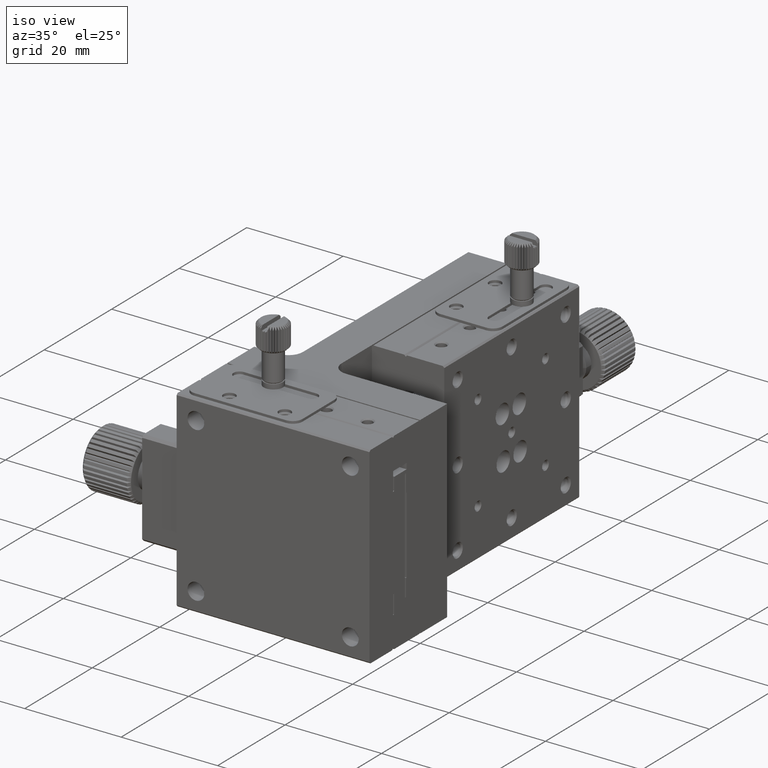
[diagram: clean part render]
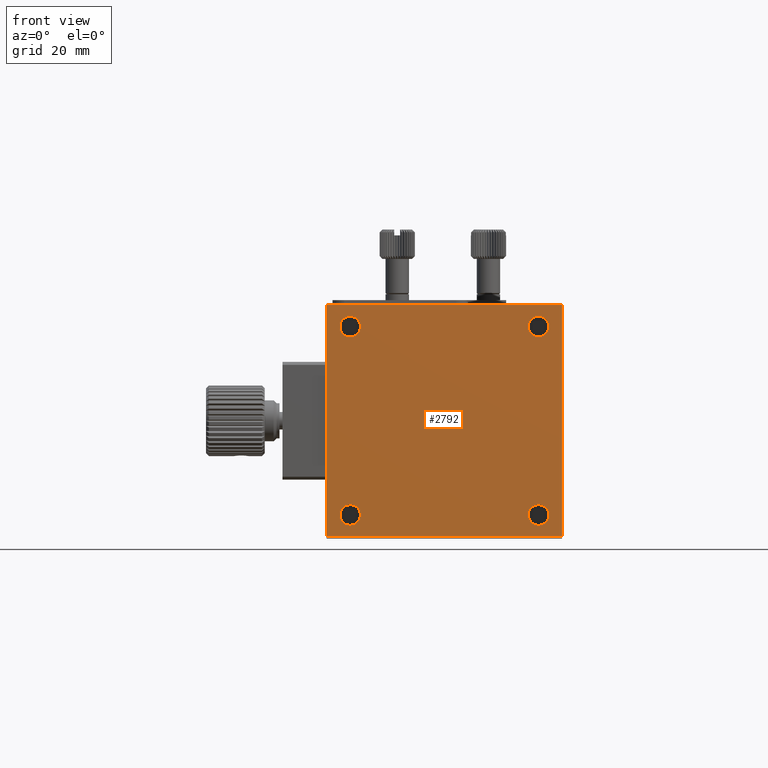
[diagram: tour spotlight — one face highlighted and labeled with its STEP entity id]
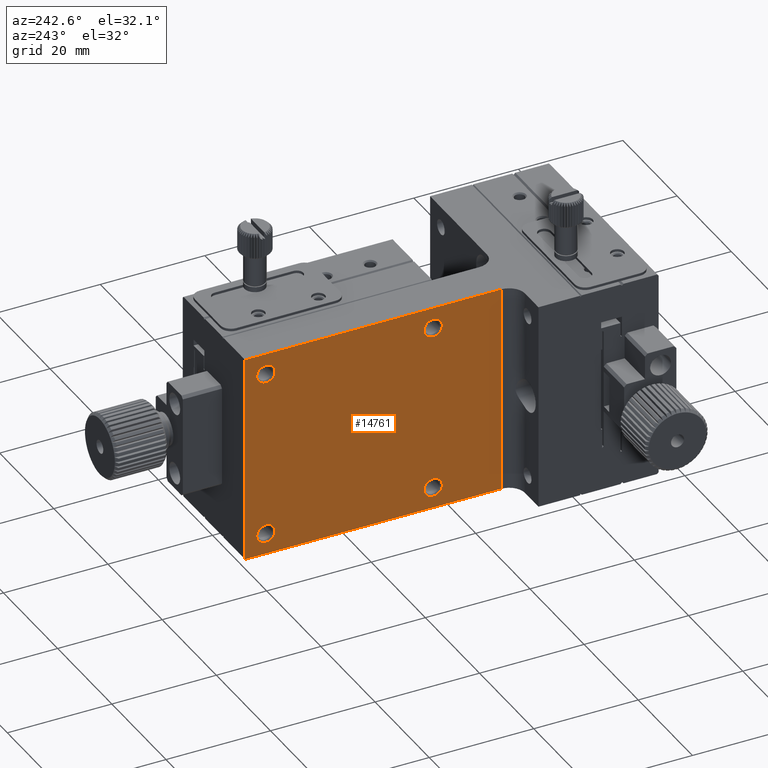
[diagram: tour spotlight — one face highlighted and labeled with its STEP entity id]
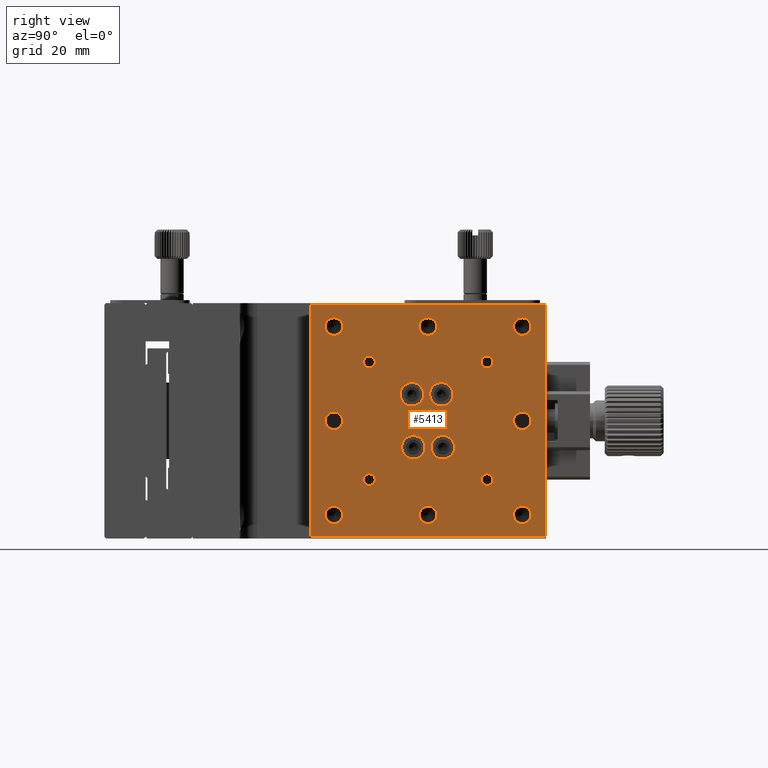
[diagram: tour spotlight — one face highlighted and labeled with its STEP entity id]
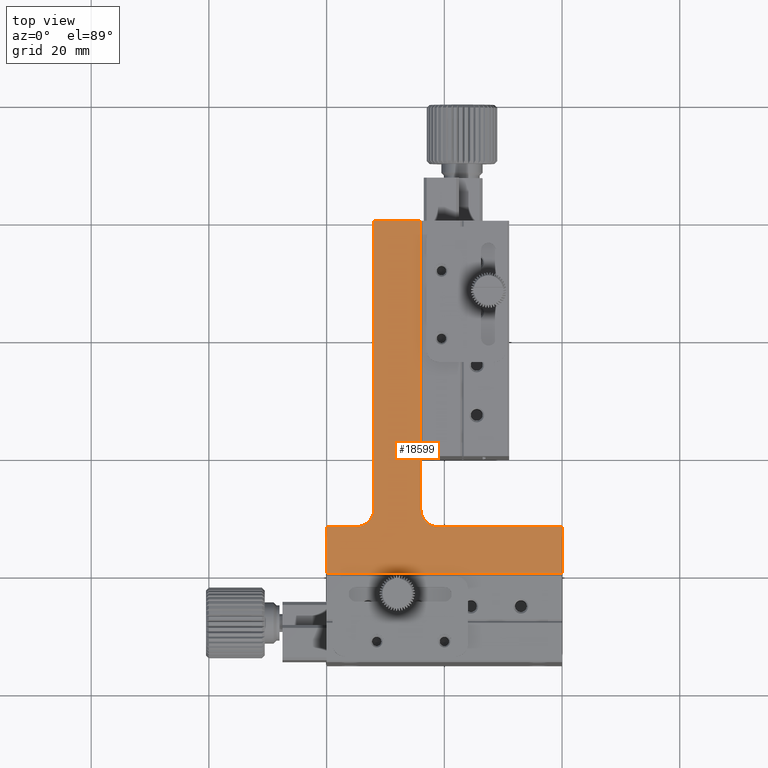
[diagram: tour spotlight — one face highlighted and labeled with its STEP entity id]
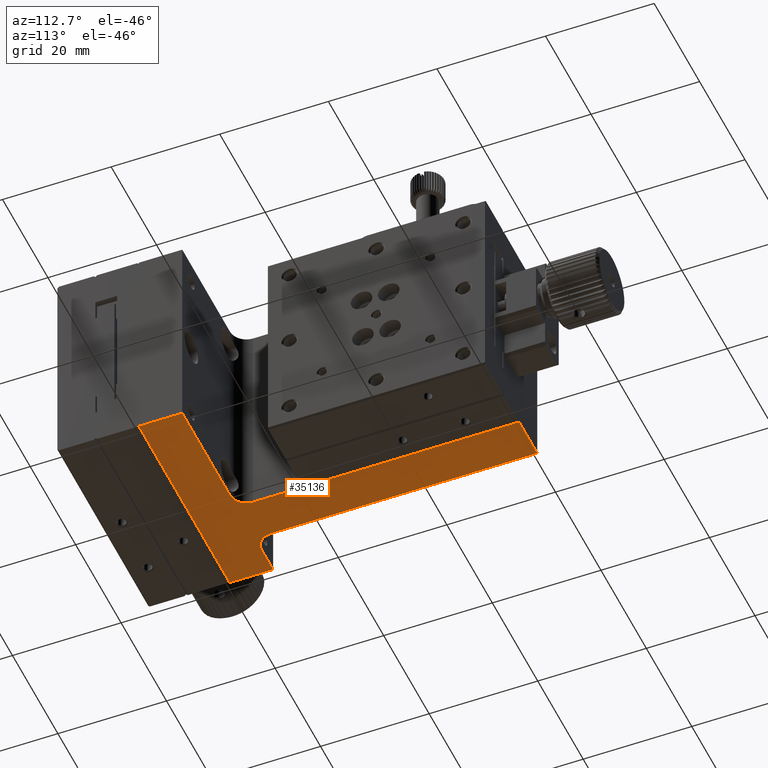
[diagram: tour spotlight — one face highlighted and labeled with its STEP entity id]
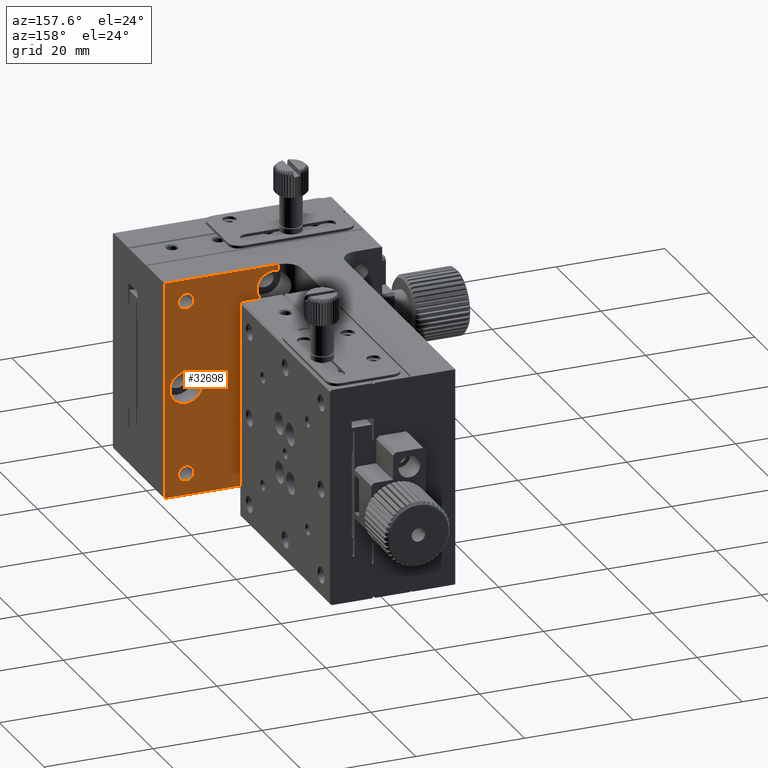
[diagram: tour spotlight — one face highlighted and labeled with its STEP entity id]
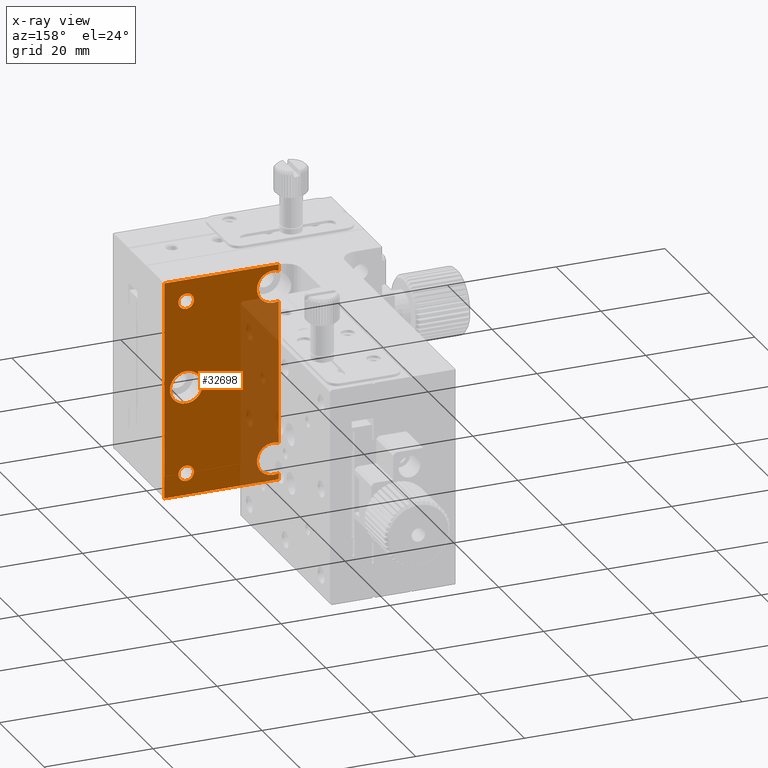
[diagram: x-ray of the same camera — body ghosted, this tour face saturated]
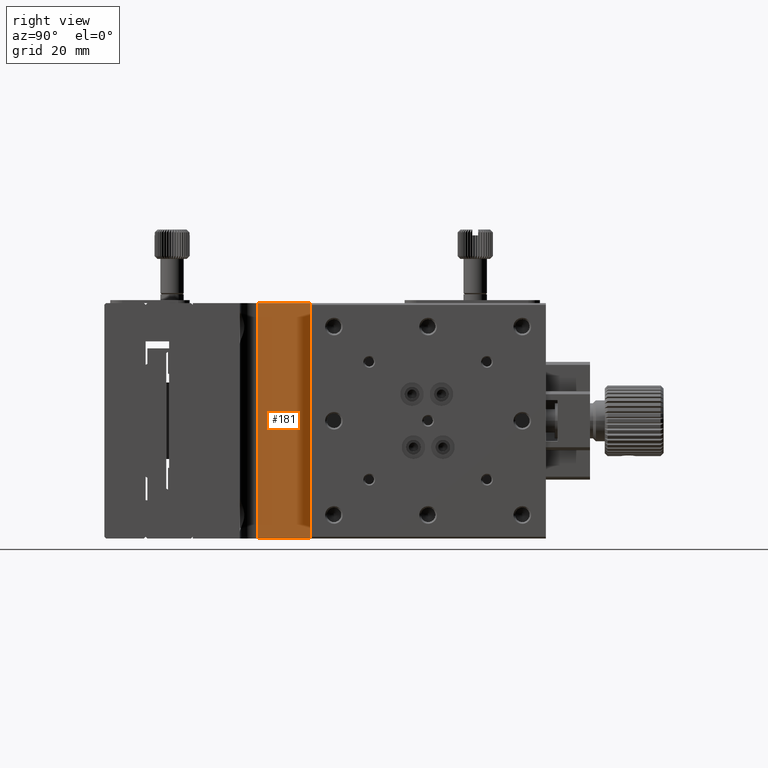
[diagram: tour spotlight — one face highlighted and labeled with its STEP entity id]
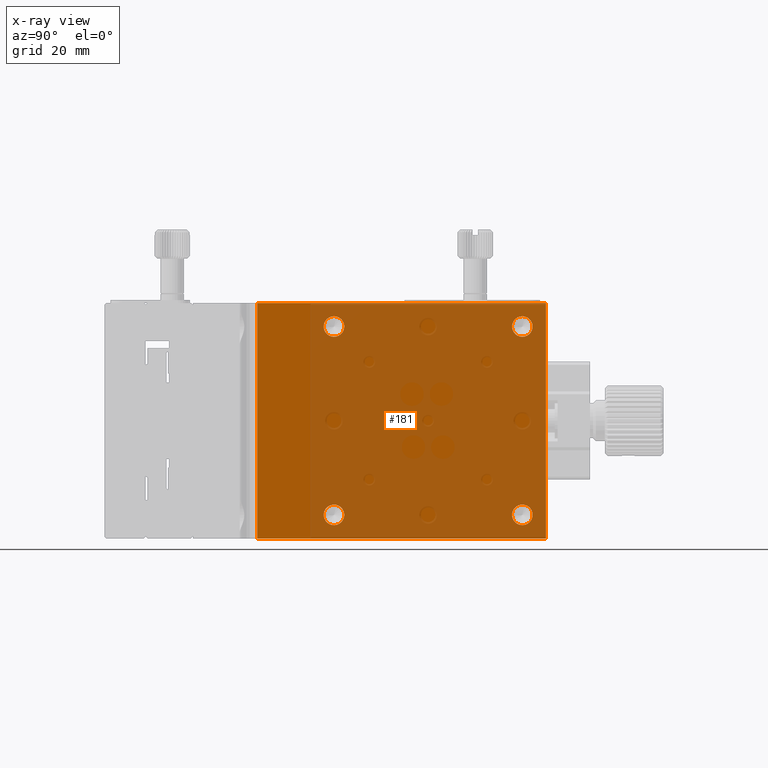
[diagram: x-ray of the same camera — body ghosted, this tour face saturated]
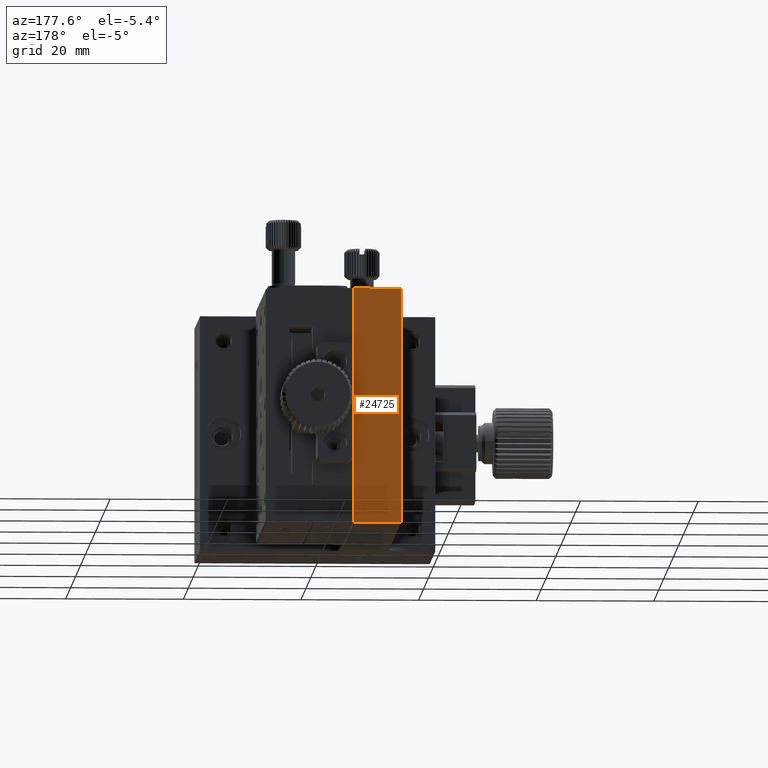
[diagram: tour spotlight — one face highlighted and labeled with its STEP entity id]
A machine part: a face-by-face anatomy tour. The part has 1320 B-rep faces; the first image is the clean iso view, then the 8 largest visible faces are spotlighted one at a time (largest first), each with its STEP entity span.

Face 1 — front view, entity #2792. In plain terms, the highlighted planar face has unit normal (0, 1, 0).
Definition (entity closure, byte-faithful):
#214 = ORIENTED_EDGE ( 'NONE', *, *, #27368, .F. ) ;
#558 = DIRECTION ( 'NONE',  ( 0.000000000000000000, -1.000000000000000000, 0.000000000000000000 ) ) ;
#598 = AXIS2_PLACEMENT_3D ( 'NONE', #9491, #3893, #19786 ) ;
#897 = EDGE_LOOP ( 'NONE', ( #7475 ) ) ;
#919 = CARTESIAN_POINT ( 'NONE',  ( 40.00000000000000000, -15.00000000000000000, -0.2999999999999830025 ) ) ;
#971 = EDGE_LOOP ( 'NONE', ( #22201 ) ) ;
#1020 = CARTESIAN_POINT ( 'NONE',  ( 4.000000000000000000, -15.00000000000000000, -5.750000000000000000 ) ) ;
#1073 = VERTEX_POINT ( 'NONE', #17356 ) ;
#1086 = LINE ( 'NONE', #9198, #22220 ) ;
#1370 = EDGE_CURVE ( 'NONE', #16006, #10210, #1086, .T. ) ;
#1470 = VERTEX_POINT ( 'NONE', #11557 ) ;
#2070 = DIRECTION ( 'NONE',  ( 0.000000000000000000, 0.000000000000000000, -1.000000000000000000 ) ) ;
#2443 = VECTOR ( 'NONE', #33307, 1000.000000000000000 ) ;
#2792 = ADVANCED_FACE ( 'NONE', ( #26309, #7370, #26482, #34899, #20921 ), #4128, .F. ) ;
#3245 = EDGE_LOOP ( 'NONE', ( #24526, #14054, #18429, #29714 ) ) ;
#3411 = AXIS2_PLACEMENT_3D ( 'NONE', #20028, #558, #22559 ) ;
#3706 = VERTEX_POINT ( 'NONE', #17942 ) ;
#3893 = DIRECTION ( 'NONE',  ( 0.000000000000000000, -1.000000000000000000, 0.000000000000000000 ) ) ;
#4128 = PLANE ( 'NONE',  #6776 ) ;
#5300 = EDGE_CURVE ( 'NONE', #6402, #6402, #14362, .T. ) ;
#5931 = EDGE_CURVE ( 'NONE', #3706, #3706, #29868, .T. ) ;
#6402 = VERTEX_POINT ( 'NONE', #1020 ) ;
#6776 = AXIS2_PLACEMENT_3D ( 'NONE', #18371, #20743, #7020 ) ;
#7020 = DIRECTION ( 'NONE',  ( 0.000000000000000000, -0.000000000000000000, 1.000000000000000000 ) ) ;
#7370 = FACE_BOUND ( 'NONE', #897, .T. ) ;
#7475 = ORIENTED_EDGE ( 'NONE', *, *, #5300, .F. ) ;
#8381 = EDGE_CURVE ( 'NONE', #10210, #1073, #22215, .T. ) ;
#9198 = CARTESIAN_POINT ( 'NONE',  ( 0.000000000000000000, -15.00000000000000000, -0.2999999999999830025 ) ) ;
#9383 = DIRECTION ( 'NONE',  ( -0.000000000000000000, 0.000000000000000000, -1.000000000000000000 ) ) ;
#9491 = CARTESIAN_POINT ( 'NONE',  ( 36.00000000000000711, -15.00000000000000000, -36.00000000000000711 ) ) ;
#10210 = VERTEX_POINT ( 'NONE', #16192 ) ;
#11051 = AXIS2_PLACEMENT_3D ( 'NONE', #20677, #31591, #12035 ) ;
#11557 = CARTESIAN_POINT ( 'NONE',  ( 40.00000000000000000, -15.00000000000000178, -39.69999999999999574 ) ) ;
#12035 = DIRECTION ( 'NONE',  ( 0.000000000000000000, 0.000000000000000000, -1.000000000000000000 ) ) ;
#12089 = DIRECTION ( 'NONE',  ( 0.000000000000000000, -0.000000000000000000, 1.000000000000000000 ) ) ;
#12352 = CARTESIAN_POINT ( 'NONE',  ( 0.000000000000000000, -15.00000000000000000, -39.69999999999999574 ) ) ;
#13545 = EDGE_LOOP ( 'NONE', ( #34357 ) ) ;
#14054 = ORIENTED_EDGE ( 'NONE', *, *, #24921, .F. ) ;
#14362 = CIRCLE ( 'NONE', #3411, 1.749999999999999778 ) ;
#15536 = AXIS2_PLACEMENT_3D ( 'NONE', #21050, #15630, #2070 ) ;
#15630 = DIRECTION ( 'NONE',  ( 0.000000000000000000, -1.000000000000000000, 0.000000000000000000 ) ) ;
#16006 = VERTEX_POINT ( 'NONE', #12352 ) ;
#16024 = LINE ( 'NONE', #33074, #31339 ) ;
#16192 = CARTESIAN_POINT ( 'NONE',  ( 0.000000000000000000, -15.00000000000000000, -0.2999999999999829470 ) ) ;
#16356 = CARTESIAN_POINT ( 'NONE',  ( 4.000000000000000000, -15.00000000000000000, -37.75000000000000711 ) ) ;
#17356 = CARTESIAN_POINT ( 'NONE',  ( 40.00000000000000000, -15.00000000000000000, -0.2999999999999829470 ) ) ;
#17942 = CARTESIAN_POINT ( 'NONE',  ( 36.00000000000000711, -15.00000000000000000, -5.750000000000000000 ) ) ;
#18371 = CARTESIAN_POINT ( 'NONE',  ( 40.00000000000000000, -15.00000000000000000, -0.2999999999999830025 ) ) ;
#18429 = ORIENTED_EDGE ( 'NONE', *, *, #8381, .F. ) ;
#19786 = DIRECTION ( 'NONE',  ( 0.000000000000000000, 0.000000000000000000, -1.000000000000000000 ) ) ;
#20028 = CARTESIAN_POINT ( 'NONE',  ( 4.000000000000000000, -15.00000000000000000, -4.000000000000000000 ) ) ;
#20039 = LINE ( 'NONE', #919, #26870 ) ;
#20677 = CARTESIAN_POINT ( 'NONE',  ( 4.000000000000000000, -15.00000000000000000, -36.00000000000000711 ) ) ;
#20711 = VERTEX_POINT ( 'NONE', #28604 ) ;
#20743 = DIRECTION ( 'NONE',  ( 0.000000000000000000, 1.000000000000000000, 0.000000000000000000 ) ) ;
#20921 = FACE_BOUND ( 'NONE', #971, .T. ) ;
#21050 = CARTESIAN_POINT ( 'NONE',  ( 36.00000000000000711, -15.00000000000000000, -4.000000000000000000 ) ) ;
#21434 = EDGE_LOOP ( 'NONE', ( #214 ) ) ;
#22008 = CIRCLE ( 'NONE', #11051, 1.750000000000001554 ) ;
#22201 = ORIENTED_EDGE ( 'NONE', *, *, #5931, .F. ) ;
#22215 = LINE ( 'NONE', #25075, #2443 ) ;
#22220 = VECTOR ( 'NONE', #12089, 1000.000000000000000 ) ;
#22559 = DIRECTION ( 'NONE',  ( 0.000000000000000000, 0.000000000000000000, -1.000000000000000000 ) ) ;
#24526 = ORIENTED_EDGE ( 'NONE', *, *, #33001, .F. ) ;
#24921 = EDGE_CURVE ( 'NONE', #1073, #1470, #20039, .T. ) ;
#25075 = CARTESIAN_POINT ( 'NONE',  ( 40.00000000000000000, -15.00000000000000000, -0.2999999999999830025 ) ) ;
#26309 = FACE_OUTER_BOUND ( 'NONE', #3245, .T. ) ;
#26482 = FACE_BOUND ( 'NONE', #13545, .T. ) ;
#26870 = VECTOR ( 'NONE', #9383, 1000.000000000000000 ) ;
#27368 = EDGE_CURVE ( 'NONE', #20711, #20711, #30454, .T. ) ;
#28604 = CARTESIAN_POINT ( 'NONE',  ( 36.00000000000000711, -15.00000000000000000, -37.75000000000000711 ) ) ;
#29171 = EDGE_CURVE ( 'NONE', #29997, #29997, #22008, .T. ) ;
#29714 = ORIENTED_EDGE ( 'NONE', *, *, #1370, .F. ) ;
#29868 = CIRCLE ( 'NONE', #15536, 1.749999999999999778 ) ;
#29997 = VERTEX_POINT ( 'NONE', #16356 ) ;
#30454 = CIRCLE ( 'NONE', #598, 1.750000000000001554 ) ;
#31339 = VECTOR ( 'NONE', #35236, 1000.000000000000000 ) ;
#31591 = DIRECTION ( 'NONE',  ( 0.000000000000000000, -1.000000000000000000, 0.000000000000000000 ) ) ;
#33001 = EDGE_CURVE ( 'NONE', #1470, #16006, #16024, .T. ) ;
#33074 = CARTESIAN_POINT ( 'NONE',  ( 40.00000000000000000, -15.00000000000000000, -39.70000000000000284 ) ) ;
#33307 = DIRECTION ( 'NONE',  ( 1.000000000000000000, 0.000000000000000000, -0.000000000000000000 ) ) ;
#34357 = ORIENTED_EDGE ( 'NONE', *, *, #29171, .F. ) ;
#34899 = FACE_BOUND ( 'NONE', #21434, .T. ) ;
#35236 = DIRECTION ( 'NONE',  ( -1.000000000000000000, -0.000000000000000000, 0.000000000000000000 ) ) ;

Face 2 — auxiliary view, entity #14761. In plain terms, the highlighted planar face has unit normal (-1, 0, 0).
Definition (entity closure, byte-faithful):
#893 = CIRCLE ( 'NONE', #21047, 1.750000000014101387 ) ;
#894 = EDGE_CURVE ( 'NONE', #26335, #16147, #5080, .T. ) ;
#1029 = CARTESIAN_POINT ( 'NONE',  ( 8.000000000000030198, 60.00000000000000000, -40.00000000000000000 ) ) ;
#1360 = ORIENTED_EDGE ( 'NONE', *, *, #7228, .T. ) ;
#1873 = ORIENTED_EDGE ( 'NONE', *, *, #31207, .F. ) ;
#2278 = AXIS2_PLACEMENT_3D ( 'NONE', #5133, #5496, #32306 ) ;
#2526 = LINE ( 'NONE', #5407, #33416 ) ;
#2895 = EDGE_CURVE ( 'NONE', #27844, #27844, #12478, .T. ) ;
#2994 = VERTEX_POINT ( 'NONE', #31068 ) ;
#3253 = ORIENTED_EDGE ( 'NONE', *, *, #2895, .T. ) ;
#4016 = EDGE_CURVE ( 'NONE', #14546, #14546, #29737, .T. ) ;
#5080 = LINE ( 'NONE', #33155, #8373 ) ;
#5133 = CARTESIAN_POINT ( 'NONE',  ( 8.000000000000030198, 60.00000000000000000, -40.00000000000000000 ) ) ;
#5137 = EDGE_LOOP ( 'NONE', ( #3253 ) ) ;
#5407 = CARTESIAN_POINT ( 'NONE',  ( 8.000000000000030198, 10.99999999999999645, -40.00000000000000000 ) ) ;
#5496 = DIRECTION ( 'NONE',  ( -1.000000000000000000, 0.000000000000000000, 0.000000000000000000 ) ) ;
#6170 = EDGE_LOOP ( 'NONE', ( #30723 ) ) ;
#7228 = EDGE_CURVE ( 'NONE', #16147, #19915, #2526, .T. ) ;
#8373 = VECTOR ( 'NONE', #10688, 1000.000000000000000 ) ;
#9124 = ORIENTED_EDGE ( 'NONE', *, *, #4016, .T. ) ;
#10296 = VERTEX_POINT ( 'NONE', #13856 ) ;
#10688 = DIRECTION ( 'NONE',  ( 0.000000000000000000, -1.000000000000000000, -0.000000000000000000 ) ) ;
#11050 = CARTESIAN_POINT ( 'NONE',  ( 8.000000000000030198, 10.99999999999999822, -40.00000000000000000 ) ) ;
#11156 = EDGE_CURVE ( 'NONE', #10296, #19915, #15604, .T. ) ;
#11344 = DIRECTION ( 'NONE',  ( 0.000000000000000000, 0.000000000000000000, 1.000000000000000000 ) ) ;
#12298 = CARTESIAN_POINT ( 'NONE',  ( 8.000000000000030198, 10.99999999999999822, 0.000000000000000000 ) ) ;
#12478 = CIRCLE ( 'NONE', #27419, 1.749999999996362021 ) ;
#13637 = FACE_BOUND ( 'NONE', #5137, .T. ) ;
#13814 = FACE_BOUND ( 'NONE', #6170, .T. ) ;
#13856 = CARTESIAN_POINT ( 'NONE',  ( 8.000000000000030198, 60.00000000000000000, 0.000000000000000000 ) ) ;
#13881 = CARTESIAN_POINT ( 'NONE',  ( 8.000000000000030198, 60.00000000000000000, -40.00000000000000000 ) ) ;
#14045 = DIRECTION ( 'NONE',  ( 0.000000000000000000, 0.000000000000000000, 1.000000000000000000 ) ) ;
#14170 = CIRCLE ( 'NONE', #22829, 1.749999999996362021 ) ;
#14255 = AXIS2_PLACEMENT_3D ( 'NONE', #34593, #32055, #34055 ) ;
#14546 = VERTEX_POINT ( 'NONE', #32859 ) ;
#14761 = ADVANCED_FACE ( 'NONE', ( #19403, #13637, #32669, #21941, #13814 ), #24092, .T. ) ;
#15040 = ORIENTED_EDGE ( 'NONE', *, *, #33124, .T. ) ;
#15604 = LINE ( 'NONE', #34816, #23425 ) ;
#16147 = VERTEX_POINT ( 'NONE', #11050 ) ;
#16581 = CARTESIAN_POINT ( 'NONE',  ( 8.000000000038198777, 24.00000000000000000, -4.000000000000000000 ) ) ;
#16938 = DIRECTION ( 'NONE',  ( 0.000000000000000000, -0.000000000000000000, 1.000000000000000000 ) ) ;
#18111 = DIRECTION ( 'NONE',  ( 0.000000000000000000, 0.000000000000000000, 1.000000000000000000 ) ) ;
#18934 = ORIENTED_EDGE ( 'NONE', *, *, #894, .T. ) ;
#19403 = FACE_OUTER_BOUND ( 'NONE', #34539, .T. ) ;
#19915 = VERTEX_POINT ( 'NONE', #12298 ) ;
#20363 = VECTOR ( 'NONE', #16938, 1000.000000000000000 ) ;
#21047 = AXIS2_PLACEMENT_3D ( 'NONE', #35609, #24845, #14045 ) ;
#21390 = EDGE_LOOP ( 'NONE', ( #9124 ) ) ;
#21941 = FACE_BOUND ( 'NONE', #21390, .T. ) ;
#22525 = CARTESIAN_POINT ( 'NONE',  ( 8.000000000038198777, 56.00000000000000000, -4.000000000000000000 ) ) ;
#22829 = AXIS2_PLACEMENT_3D ( 'NONE', #22525, #25559, #18111 ) ;
#23425 = VECTOR ( 'NONE', #31928, 1000.000000000000000 ) ;
#24092 = PLANE ( 'NONE',  #2278 ) ;
#24845 = DIRECTION ( 'NONE',  ( 1.000000000000000000, -0.000000000000000000, -0.000000000000000000 ) ) ;
#24864 = LINE ( 'NONE', #13881, #20363 ) ;
#25071 = DIRECTION ( 'NONE',  ( 0.000000000000000000, 0.000000000000000000, 1.000000000000000000 ) ) ;
#25174 = CARTESIAN_POINT ( 'NONE',  ( 8.000000000038198777, 24.00000000000000000, -2.250000000003637979 ) ) ;
#25181 = VERTEX_POINT ( 'NONE', #25531 ) ;
#25307 = EDGE_LOOP ( 'NONE', ( #15040 ) ) ;
#25531 = CARTESIAN_POINT ( 'NONE',  ( 7.999999999924511940, 24.00000000000000000, -34.24999999998590283 ) ) ;
#25559 = DIRECTION ( 'NONE',  ( 1.000000000000000000, -0.000000000000000000, -0.000000000000000000 ) ) ;
#26335 = VERTEX_POINT ( 'NONE', #1029 ) ;
#27419 = AXIS2_PLACEMENT_3D ( 'NONE', #16581, #30561, #11344 ) ;
#27844 = VERTEX_POINT ( 'NONE', #25174 ) ;
#29737 = CIRCLE ( 'NONE', #14255, 1.750000000014101387 ) ;
#30561 = DIRECTION ( 'NONE',  ( 1.000000000000000000, -0.000000000000000000, -0.000000000000000000 ) ) ;
#30723 = ORIENTED_EDGE ( 'NONE', *, *, #32956, .T. ) ;
#31068 = CARTESIAN_POINT ( 'NONE',  ( 8.000000000038198777, 56.00000000000000000, -2.250000000003637979 ) ) ;
#31207 = EDGE_CURVE ( 'NONE', #26335, #10296, #24864, .T. ) ;
#31928 = DIRECTION ( 'NONE',  ( 0.000000000000000000, -1.000000000000000000, -0.000000000000000000 ) ) ;
#32055 = DIRECTION ( 'NONE',  ( 1.000000000000000000, -0.000000000000000000, -0.000000000000000000 ) ) ;
#32306 = DIRECTION ( 'NONE',  ( 0.000000000000000000, 0.000000000000000000, 1.000000000000000000 ) ) ;
#32669 = FACE_BOUND ( 'NONE', #25307, .T. ) ;
#32859 = CARTESIAN_POINT ( 'NONE',  ( 7.999999999924511940, 56.00000000000000000, -34.24999999998590283 ) ) ;
#32956 = EDGE_CURVE ( 'NONE', #25181, #25181, #893, .T. ) ;
#33124 = EDGE_CURVE ( 'NONE', #2994, #2994, #14170, .T. ) ;
#33155 = CARTESIAN_POINT ( 'NONE',  ( 8.000000000000030198, 11.00000000000000000, -40.00000000000000000 ) ) ;
#33416 = VECTOR ( 'NONE', #25071, 1000.000000000000000 ) ;
#34055 = DIRECTION ( 'NONE',  ( 0.000000000000000000, 0.000000000000000000, 1.000000000000000000 ) ) ;
#34402 = ORIENTED_EDGE ( 'NONE', *, *, #11156, .F. ) ;
#34539 = EDGE_LOOP ( 'NONE', ( #18934, #1360, #34402, #1873 ) ) ;
#34593 = CARTESIAN_POINT ( 'NONE',  ( 7.999999999924511940, 56.00000000000000000, -36.00000000000000711 ) ) ;
#34816 = CARTESIAN_POINT ( 'NONE',  ( 8.000000000000030198, 11.00000000000000000, 0.000000000000000000 ) ) ;
#35609 = CARTESIAN_POINT ( 'NONE',  ( 7.999999999924511940, 24.00000000000000000, -36.00000000000000711 ) ) ;

Face 3 — right view, entity #5413. In plain terms, the highlighted planar face has unit normal (-1, 0, 0).
Definition (entity closure, byte-faithful):
#3 = VERTEX_POINT ( 'NONE', #26837 ) ;
#255 = ORIENTED_EDGE ( 'NONE', *, *, #20495, .F. ) ;
#780 = EDGE_CURVE ( 'NONE', #24633, #24633, #3175, .T. ) ;
#1256 = FACE_BOUND ( 'NONE', #11060, .T. ) ;
#1773 = DIRECTION ( 'NONE',  ( 0.000000000000000000, 0.000000000000000000, 1.000000000000000000 ) ) ;
#1775 = PLANE ( 'NONE',  #9746 ) ;
#2237 = CARTESIAN_POINT ( 'NONE',  ( 31.00000000000000000, 55.99999999999999289, -36.00000000000000000 ) ) ;
#2296 = CARTESIAN_POINT ( 'NONE',  ( 30.99999999999999645, 60.00000000000000000, -39.69999999999999574 ) ) ;
#2331 = CIRCLE ( 'NONE', #4619, 1.499999999945430318 ) ;
#2674 = DIRECTION ( 'NONE',  ( 1.000000000000000000, -0.000000000000000000, -0.000000000000000000 ) ) ;
#2863 = EDGE_CURVE ( 'NONE', #14370, #14370, #11985, .T. ) ;
#2894 = CIRCLE ( 'NONE', #6943, 1.500000000020013102 ) ;
#2897 = EDGE_LOOP ( 'NONE', ( #20722 ) ) ;
#2930 = ORIENTED_EDGE ( 'NONE', *, *, #17814, .F. ) ;
#2983 = ORIENTED_EDGE ( 'NONE', *, *, #4800, .F. ) ;
#3175 = CIRCLE ( 'NONE', #24479, 1.999999999999998224 ) ;
#3522 = EDGE_CURVE ( 'NONE', #14374, #18103, #3526, .T. ) ;
#3526 = LINE ( 'NONE', #12022, #16546 ) ;
#3711 = LINE ( 'NONE', #26233, #5992 ) ;
#3728 = DIRECTION ( 'NONE',  ( 0.000000000000000000, 0.000000000000000000, -1.000000000000000000 ) ) ;
#4086 = AXIS2_PLACEMENT_3D ( 'NONE', #22979, #18237, #15552 ) ;
#4285 = DIRECTION ( 'NONE',  ( -0.000000000000000000, 1.000000000000000000, -0.000000000000000000 ) ) ;
#4287 = FACE_BOUND ( 'NONE', #17051, .T. ) ;
#4619 = AXIS2_PLACEMENT_3D ( 'NONE', #10676, #5427, #13201 ) ;
#4800 = EDGE_CURVE ( 'NONE', #19413, #19413, #6239, .T. ) ;
#5413 = ADVANCED_FACE ( 'NONE', ( #33992, #9371, #6650, #1256, #34356, #34528, #23774, #26639, #29138, #20729, #4287, #34884, #7355, #15672, #12949, #12621, #10244, #26470 ), #1775, .F. ) ;
#5427 = DIRECTION ( 'NONE',  ( 1.000000000000000000, 0.000000000000000000, 0.000000000000000000 ) ) ;
#5666 = AXIS2_PLACEMENT_3D ( 'NONE', #23587, #31624, #28946 ) ;
#5827 = ORIENTED_EDGE ( 'NONE', *, *, #27637, .F. ) ;
#5901 = ORIENTED_EDGE ( 'NONE', *, *, #26420, .F. ) ;
#5992 = VECTOR ( 'NONE', #23036, 1000.000000000000000 ) ;
#6024 = DIRECTION ( 'NONE',  ( 0.000000000000000000, 0.000000000000000000, 1.000000000000000000 ) ) ;
#6032 = CIRCLE ( 'NONE', #23895, 1.000000000051386895 ) ;
#6238 = EDGE_LOOP ( 'NONE', ( #20670 ) ) ;
#6239 = CIRCLE ( 'NONE', #26375, 0.9999999999467934497 ) ;
#6292 = EDGE_LOOP ( 'NONE', ( #7362 ) ) ;
#6378 = DIRECTION ( 'NONE',  ( 1.000000000000000000, 0.000000000000000000, 0.000000000000000000 ) ) ;
#6650 = FACE_BOUND ( 'NONE', #21164, .T. ) ;
#6852 = VERTEX_POINT ( 'NONE', #7381 ) ;
#6943 = AXIS2_PLACEMENT_3D ( 'NONE', #2237, #35170, #27112 ) ;
#6947 = VERTEX_POINT ( 'NONE', #26232 ) ;
#7014 = CARTESIAN_POINT ( 'NONE',  ( 30.99999999999999289, 19.99999999999999645, -39.69999999999999574 ) ) ;
#7031 = EDGE_CURVE ( 'NONE', #12377, #12377, #26524, .T. ) ;
#7163 = CARTESIAN_POINT ( 'NONE',  ( 30.99999999999999645, 19.99999999999999645, -0.3000000000000154210 ) ) ;
#7244 = DIRECTION ( 'NONE',  ( 0.000000000000000000, 0.000000000000000000, 1.000000000000000000 ) ) ;
#7355 = FACE_BOUND ( 'NONE', #32238, .T. ) ;
#7362 = ORIENTED_EDGE ( 'NONE', *, *, #780, .F. ) ;
#7381 = CARTESIAN_POINT ( 'NONE',  ( 31.00000000000000000, 23.99999999999999289, -18.50000000001727685 ) ) ;
#7513 = CARTESIAN_POINT ( 'NONE',  ( 31.00000000000000000, 49.99999999999999289, -9.999999999999994671 ) ) ;
#7864 = CARTESIAN_POINT ( 'NONE',  ( 31.00000000000000000, 55.99999999999999289, -34.49999999997998401 ) ) ;
#8044 = CARTESIAN_POINT ( 'NONE',  ( 30.99999999994315658, 23.99999999999999289, -2.500000000054564353 ) ) ;
#8278 = VERTEX_POINT ( 'NONE', #19283 ) ;
#8366 = VECTOR ( 'NONE', #13860, 1000.000000000000000 ) ;
#8549 = VERTEX_POINT ( 'NONE', #30478 ) ;
#9074 = VECTOR ( 'NONE', #4285, 1000.000000000000000 ) ;
#9143 = AXIS2_PLACEMENT_3D ( 'NONE', #7513, #26966, #15822 ) ;
#9154 = DIRECTION ( 'NONE',  ( 1.000000000000000000, -0.000000000000000000, -0.000000000000000000 ) ) ;
#9179 = VERTEX_POINT ( 'NONE', #22717 ) ;
#9363 = AXIS2_PLACEMENT_3D ( 'NONE', #23762, #21418, #10057 ) ;
#9371 = FACE_BOUND ( 'NONE', #25646, .T. ) ;
#9724 = LINE ( 'NONE', #28961, #9074 ) ;
#9726 = DIRECTION ( 'NONE',  ( -1.230518249841690057E-16, -0.000000000000000000, -1.000000000000000000 ) ) ;
#9746 = AXIS2_PLACEMENT_3D ( 'NONE', #18359, #23941, #9726 ) ;
#9905 = EDGE_CURVE ( 'NONE', #12891, #12891, #6032, .T. ) ;
#10057 = DIRECTION ( 'NONE',  ( 0.000000000000000000, 0.000000000000000000, 1.000000000000000000 ) ) ;
#10244 = FACE_BOUND ( 'NONE', #10290, .T. ) ;
#10290 = EDGE_LOOP ( 'NONE', ( #33269 ) ) ;
#10676 = CARTESIAN_POINT ( 'NONE',  ( 30.99999999994315658, 23.99999999999999289, -3.999999999999994671 ) ) ;
#10727 = EDGE_CURVE ( 'NONE', #21024, #21024, #33668, .T. ) ;
#10845 = DIRECTION ( 'NONE',  ( 1.000000000000000000, 0.000000000000000000, 0.000000000000000000 ) ) ;
#11055 = DIRECTION ( 'NONE',  ( 0.000000000000000000, 0.000000000000000000, 1.000000000000000000 ) ) ;
#11060 = EDGE_LOOP ( 'NONE', ( #19998 ) ) ;
#11532 = EDGE_CURVE ( 'NONE', #27097, #27097, #22851, .T. ) ;
#11601 = DIRECTION ( 'NONE',  ( 1.000000000000000000, 0.000000000000000000, 0.000000000000000000 ) ) ;
#11693 = EDGE_LOOP ( 'NONE', ( #2930 ) ) ;
#11835 = DIRECTION ( 'NONE',  ( 0.000000000000000000, -1.000000000000000000, 0.000000000000000000 ) ) ;
#11985 = CIRCLE ( 'NONE', #23964, 2.000000000000000000 ) ;
#12022 = CARTESIAN_POINT ( 'NONE',  ( 30.99999999999999645, 19.99999999999999645, -39.69999999999999574 ) ) ;
#12261 = ORIENTED_EDGE ( 'NONE', *, *, #21036, .F. ) ;
#12377 = VERTEX_POINT ( 'NONE', #14727 ) ;
#12502 = AXIS2_PLACEMENT_3D ( 'NONE', #20487, #31405, #32102 ) ;
#12565 = DIRECTION ( 'NONE',  ( 0.000000000000000000, 0.000000000000000000, 1.000000000000000000 ) ) ;
#12619 = DIRECTION ( 'NONE',  ( 1.000000000000000000, 0.000000000000000000, 0.000000000000000000 ) ) ;
#12621 = FACE_BOUND ( 'NONE', #6292, .T. ) ;
#12891 = VERTEX_POINT ( 'NONE', #21191 ) ;
#12949 = FACE_BOUND ( 'NONE', #32309, .T. ) ;
#13069 = CARTESIAN_POINT ( 'NONE',  ( 31.00000000000000000, 55.99999999999999289, -19.99999999999999645 ) ) ;
#13201 = DIRECTION ( 'NONE',  ( 0.000000000000000000, 0.000000000000000000, 1.000000000000000000 ) ) ;
#13537 = DIRECTION ( 'NONE',  ( 0.000000000000000000, 0.000000000000000000, 1.000000000000000000 ) ) ;
#13608 = EDGE_CURVE ( 'NONE', #8549, #8549, #35546, .T. ) ;
#13773 = AXIS2_PLACEMENT_3D ( 'NONE', #13069, #23548, #12565 ) ;
#13822 = CARTESIAN_POINT ( 'NONE',  ( 31.00000000000000000, 42.24999999999999289, -17.49999999999999645 ) ) ;
#13860 = DIRECTION ( 'NONE',  ( -1.230518249841690057E-16, -0.000000000000000000, -1.000000000000000000 ) ) ;
#13950 = CIRCLE ( 'NONE', #34017, 1.499999999945430318 ) ;
#14370 = VERTEX_POINT ( 'NONE', #13822 ) ;
#14374 = VERTEX_POINT ( 'NONE', #19080 ) ;
#14411 = ORIENTED_EDGE ( 'NONE', *, *, #31685, .F. ) ;
#14727 = CARTESIAN_POINT ( 'NONE',  ( 31.00000000000000000, 37.25000000000000000, -17.49999999999999645 ) ) ;
#14920 = CIRCLE ( 'NONE', #5666, 1.499999999945430318 ) ;
#15407 = AXIS2_PLACEMENT_3D ( 'NONE', #29313, #12619, #1773 ) ;
#15552 = DIRECTION ( 'NONE',  ( 0.000000000000000000, 0.000000000000000000, -1.000000000000000000 ) ) ;
#15672 = FACE_BOUND ( 'NONE', #6238, .T. ) ;
#15732 = CARTESIAN_POINT ( 'NONE',  ( 31.00000000000000000, 23.99999999999999289, -36.00000000000000000 ) ) ;
#15822 = DIRECTION ( 'NONE',  ( 0.000000000000000000, 0.000000000000000000, 1.000000000000000000 ) ) ;
#16319 = AXIS2_PLACEMENT_3D ( 'NONE', #22206, #10845, #13537 ) ;
#16546 = VECTOR ( 'NONE', #11835, 1000.000000000000000 ) ;
#16770 = CIRCLE ( 'NONE', #9363, 0.9999999999467934497 ) ;
#17051 = EDGE_LOOP ( 'NONE', ( #29332 ) ) ;
#17288 = EDGE_LOOP ( 'NONE', ( #25865 ) ) ;
#17465 = CIRCLE ( 'NONE', #16319, 1.499999999982720045 ) ;
#17489 = DIRECTION ( 'NONE',  ( 1.000000000000000000, 0.000000000000000000, 0.000000000000000000 ) ) ;
#17625 = AXIS2_PLACEMENT_3D ( 'NONE', #31788, #32311, #34681 ) ;
#17814 = EDGE_CURVE ( 'NONE', #6852, #6852, #17465, .T. ) ;
#18103 = VERTEX_POINT ( 'NONE', #7014 ) ;
#18164 = VERTEX_POINT ( 'NONE', #31979 ) ;
#18237 = DIRECTION ( 'NONE',  ( 1.000000000000000000, -0.000000000000000000, -0.000000000000000000 ) ) ;
#18359 = CARTESIAN_POINT ( 'NONE',  ( 30.99999999999999645, 19.99999999999999645, -39.69999999999999574 ) ) ;
#19000 = CARTESIAN_POINT ( 'NONE',  ( 31.00000000000000000, 37.50000000000000000, -26.49999999999999645 ) ) ;
#19080 = CARTESIAN_POINT ( 'NONE',  ( 30.99999999999999289, 60.00000000000000000, -39.69999999999999574 ) ) ;
#19270 = DIRECTION ( 'NONE',  ( 0.000000000000000000, 0.000000000000000000, -1.000000000000000000 ) ) ;
#19272 = EDGE_LOOP ( 'NONE', ( #5901 ) ) ;
#19283 = CARTESIAN_POINT ( 'NONE',  ( 30.99999999994315658, 39.99999999999999289, -2.500000000054564353 ) ) ;
#19312 = EDGE_LOOP ( 'NONE', ( #5827 ) ) ;
#19332 = ORIENTED_EDGE ( 'NONE', *, *, #26188, .F. ) ;
#19413 = VERTEX_POINT ( 'NONE', #30348 ) ;
#19752 = CARTESIAN_POINT ( 'NONE',  ( 30.99999999994315658, 39.99999999999999289, -3.999999999999994671 ) ) ;
#19932 = EDGE_LOOP ( 'NONE', ( #27099 ) ) ;
#19998 = ORIENTED_EDGE ( 'NONE', *, *, #28004, .F. ) ;
#20098 = ORIENTED_EDGE ( 'NONE', *, *, #32955, .F. ) ;
#20204 = DIRECTION ( 'NONE',  ( 0.000000000000000000, 0.000000000000000000, 1.000000000000000000 ) ) ;
#20257 = ORIENTED_EDGE ( 'NONE', *, *, #3522, .F. ) ;
#20487 = CARTESIAN_POINT ( 'NONE',  ( 31.00000000000000000, 39.99999999999999289, -36.00000000000000000 ) ) ;
#20495 = EDGE_CURVE ( 'NONE', #3, #3, #16770, .T. ) ;
#20670 = ORIENTED_EDGE ( 'NONE', *, *, #23959, .F. ) ;
#20681 = CIRCLE ( 'NONE', #13773, 1.499999999982720045 ) ;
#20722 = ORIENTED_EDGE ( 'NONE', *, *, #10727, .F. ) ;
#20729 = FACE_BOUND ( 'NONE', #17288, .T. ) ;
#21024 = VERTEX_POINT ( 'NONE', #19000 ) ;
#21036 = EDGE_CURVE ( 'NONE', #8278, #8278, #13950, .T. ) ;
#21162 = CARTESIAN_POINT ( 'NONE',  ( 30.99999999999999645, 60.00000000000000000, -0.3000000000000170308 ) ) ;
#21164 = EDGE_LOOP ( 'NONE', ( #12261 ) ) ;
#21191 = CARTESIAN_POINT ( 'NONE',  ( 31.00000000005684342, 39.99999999999999289, -18.99999999994861000 ) ) ;
#21316 = DIRECTION ( 'NONE',  ( 1.000000000000000000, 0.000000000000000000, 0.000000000000000000 ) ) ;
#21418 = DIRECTION ( 'NONE',  ( 1.000000000000000000, 0.000000000000000000, 0.000000000000000000 ) ) ;
#22206 = CARTESIAN_POINT ( 'NONE',  ( 31.00000000000000000, 23.99999999999999289, -19.99999999999999645 ) ) ;
#22717 = CARTESIAN_POINT ( 'NONE',  ( 31.00000000000000000, 30.00000000000000000, -8.999999999957703167 ) ) ;
#22851 = CIRCLE ( 'NONE', #26259, 1.500000000020013102 ) ;
#22938 = EDGE_LOOP ( 'NONE', ( #255 ) ) ;
#22979 = CARTESIAN_POINT ( 'NONE',  ( 31.00000000000000000, 37.25000000000000000, -15.49999999999999467 ) ) ;
#23036 = DIRECTION ( 'NONE',  ( 1.230518249841690057E-16, 0.000000000000000000, 1.000000000000000000 ) ) ;
#23247 = VERTEX_POINT ( 'NONE', #7864 ) ;
#23548 = DIRECTION ( 'NONE',  ( 1.000000000000000000, 0.000000000000000000, 0.000000000000000000 ) ) ;
#23556 = EDGE_LOOP ( 'NONE', ( #24114, #14411, #20257, #20098 ) ) ;
#23587 = CARTESIAN_POINT ( 'NONE',  ( 30.99999999994315658, 55.99999999999999289, -3.999999999999994671 ) ) ;
#23762 = CARTESIAN_POINT ( 'NONE',  ( 30.99999999994315658, 49.99999999999999289, -29.99999999999999645 ) ) ;
#23774 = FACE_BOUND ( 'NONE', #19932, .T. ) ;
#23858 = CARTESIAN_POINT ( 'NONE',  ( 31.00000000000000000, 42.49999999999999289, -24.49999999999999645 ) ) ;
#23895 = AXIS2_PLACEMENT_3D ( 'NONE', #25597, #17489, #20204 ) ;
#23918 = EDGE_CURVE ( 'NONE', #31293, #25456, #9724, .T. ) ;
#23919 = CARTESIAN_POINT ( 'NONE',  ( 31.00000000000000000, 42.49999999999999289, -26.49999999999999645 ) ) ;
#23941 = DIRECTION ( 'NONE',  ( -1.000000000000000000, 0.000000000000000000, 1.230518249841690057E-16 ) ) ;
#23959 = EDGE_CURVE ( 'NONE', #9179, #9179, #30887, .T. ) ;
#23964 = AXIS2_PLACEMENT_3D ( 'NONE', #24493, #2674, #19270 ) ;
#24084 = CARTESIAN_POINT ( 'NONE',  ( 30.99999999994315658, 30.00000000000000000, -29.99999999999999645 ) ) ;
#24114 = ORIENTED_EDGE ( 'NONE', *, *, #23918, .F. ) ;
#24479 = AXIS2_PLACEMENT_3D ( 'NONE', #23858, #9154, #3728 ) ;
#24493 = CARTESIAN_POINT ( 'NONE',  ( 31.00000000000000000, 42.24999999999999289, -15.49999999999999467 ) ) ;
#24633 = VERTEX_POINT ( 'NONE', #23919 ) ;
#25456 = VERTEX_POINT ( 'NONE', #21162 ) ;
#25597 = CARTESIAN_POINT ( 'NONE',  ( 31.00000000005684342, 39.99999999999999289, -19.99999999999999645 ) ) ;
#25646 = EDGE_LOOP ( 'NONE', ( #19332 ) ) ;
#25799 = EDGE_LOOP ( 'NONE', ( #33568 ) ) ;
#25865 = ORIENTED_EDGE ( 'NONE', *, *, #13608, .F. ) ;
#26188 = EDGE_CURVE ( 'NONE', #28772, #28772, #14920, .T. ) ;
#26232 = CARTESIAN_POINT ( 'NONE',  ( 31.00000000000000000, 39.99999999999999289, -34.49999999997998401 ) ) ;
#26233 = CARTESIAN_POINT ( 'NONE',  ( 30.99999999999999645, 19.99999999999999645, -39.69999999999999574 ) ) ;
#26259 = AXIS2_PLACEMENT_3D ( 'NONE', #15732, #21316, #7244 ) ;
#26375 = AXIS2_PLACEMENT_3D ( 'NONE', #24084, #11601, #11055 ) ;
#26420 = EDGE_CURVE ( 'NONE', #18164, #18164, #20681, .T. ) ;
#26470 = FACE_BOUND ( 'NONE', #2897, .T. ) ;
#26524 = CIRCLE ( 'NONE', #4086, 2.000000000000000000 ) ;
#26639 = FACE_BOUND ( 'NONE', #19312, .T. ) ;
#26837 = CARTESIAN_POINT ( 'NONE',  ( 30.99999999994315658, 49.99999999999999289, -29.00000000005320189 ) ) ;
#26966 = DIRECTION ( 'NONE',  ( 1.000000000000000000, 0.000000000000000000, 0.000000000000000000 ) ) ;
#26989 = LINE ( 'NONE', #2296, #8366 ) ;
#27097 = VERTEX_POINT ( 'NONE', #32270 ) ;
#27099 = ORIENTED_EDGE ( 'NONE', *, *, #34269, .F. ) ;
#27112 = DIRECTION ( 'NONE',  ( 0.000000000000000000, 0.000000000000000000, 1.000000000000000000 ) ) ;
#27637 = EDGE_CURVE ( 'NONE', #23247, #23247, #2894, .T. ) ;
#27914 = ORIENTED_EDGE ( 'NONE', *, *, #2863, .F. ) ;
#28001 = CIRCLE ( 'NONE', #12502, 1.500000000020013102 ) ;
#28004 = EDGE_CURVE ( 'NONE', #32493, #32493, #2331, .T. ) ;
#28772 = VERTEX_POINT ( 'NONE', #34331 ) ;
#28946 = DIRECTION ( 'NONE',  ( 0.000000000000000000, 0.000000000000000000, 1.000000000000000000 ) ) ;
#28961 = CARTESIAN_POINT ( 'NONE',  ( 31.00000000000000000, 19.99999999999999645, -0.3000000000000175859 ) ) ;
#29138 = FACE_BOUND ( 'NONE', #19272, .T. ) ;
#29313 = CARTESIAN_POINT ( 'NONE',  ( 31.00000000000000000, 30.00000000000000000, -9.999999999999994671 ) ) ;
#29332 = ORIENTED_EDGE ( 'NONE', *, *, #9905, .F. ) ;
#30348 = CARTESIAN_POINT ( 'NONE',  ( 30.99999999994315658, 30.00000000000000000, -29.00000000005320189 ) ) ;
#30478 = CARTESIAN_POINT ( 'NONE',  ( 31.00000000000000000, 49.99999999999999289, -8.999999999957703167 ) ) ;
#30887 = CIRCLE ( 'NONE', #15407, 1.000000000042291726 ) ;
#31293 = VERTEX_POINT ( 'NONE', #7163 ) ;
#31405 = DIRECTION ( 'NONE',  ( 1.000000000000000000, 0.000000000000000000, 0.000000000000000000 ) ) ;
#31624 = DIRECTION ( 'NONE',  ( 1.000000000000000000, 0.000000000000000000, 0.000000000000000000 ) ) ;
#31685 = EDGE_CURVE ( 'NONE', #18103, #31293, #3711, .T. ) ;
#31788 = CARTESIAN_POINT ( 'NONE',  ( 31.00000000000000000, 37.50000000000000000, -24.49999999999999645 ) ) ;
#31979 = CARTESIAN_POINT ( 'NONE',  ( 31.00000000000000000, 55.99999999999999289, -18.50000000001727685 ) ) ;
#32102 = DIRECTION ( 'NONE',  ( 0.000000000000000000, 0.000000000000000000, 1.000000000000000000 ) ) ;
#32238 = EDGE_LOOP ( 'NONE', ( #2983 ) ) ;
#32270 = CARTESIAN_POINT ( 'NONE',  ( 31.00000000000000000, 23.99999999999999289, -34.49999999997998401 ) ) ;
#32309 = EDGE_LOOP ( 'NONE', ( #27914 ) ) ;
#32311 = DIRECTION ( 'NONE',  ( 1.000000000000000000, -0.000000000000000000, -0.000000000000000000 ) ) ;
#32493 = VERTEX_POINT ( 'NONE', #8044 ) ;
#32955 = EDGE_CURVE ( 'NONE', #25456, #14374, #26989, .T. ) ;
#33269 = ORIENTED_EDGE ( 'NONE', *, *, #7031, .F. ) ;
#33568 = ORIENTED_EDGE ( 'NONE', *, *, #11532, .F. ) ;
#33668 = CIRCLE ( 'NONE', #17625, 1.999999999999998224 ) ;
#33992 = FACE_OUTER_BOUND ( 'NONE', #23556, .T. ) ;
#34017 = AXIS2_PLACEMENT_3D ( 'NONE', #19752, #6378, #6024 ) ;
#34269 = EDGE_CURVE ( 'NONE', #6947, #6947, #28001, .T. ) ;
#34331 = CARTESIAN_POINT ( 'NONE',  ( 30.99999999994315658, 55.99999999999999289, -2.500000000054564353 ) ) ;
#34356 = FACE_BOUND ( 'NONE', #11693, .T. ) ;
#34528 = FACE_BOUND ( 'NONE', #25799, .T. ) ;
#34681 = DIRECTION ( 'NONE',  ( 0.000000000000000000, 0.000000000000000000, -1.000000000000000000 ) ) ;
#34884 = FACE_BOUND ( 'NONE', #22938, .T. ) ;
#35170 = DIRECTION ( 'NONE',  ( 1.000000000000000000, 0.000000000000000000, 0.000000000000000000 ) ) ;
#35546 = CIRCLE ( 'NONE', #9143, 1.000000000042291726 ) ;

Face 4 — top view, entity #18599. In plain terms, the highlighted planar face has unit normal (0, 0, 1).
Definition (entity closure, byte-faithful):
#78 = DIRECTION ( 'NONE',  ( 1.000000000000000000, 0.000000000000000000, -0.000000000000000000 ) ) ;
#240 = CARTESIAN_POINT ( 'NONE',  ( 40.00000000000000000, 8.000000000000000000, 0.000000000000000000 ) ) ;
#473 = LINE ( 'NONE', #16695, #6154 ) ;
#998 = VERTEX_POINT ( 'NONE', #25824 ) ;
#1217 = CARTESIAN_POINT ( 'NONE',  ( 19.00000000000000000, 8.000000000000000000, 0.000000000000000000 ) ) ;
#1222 = VERTEX_POINT ( 'NONE', #27023 ) ;
#2105 = EDGE_CURVE ( 'NONE', #19915, #998, #35447, .T. ) ;
#2234 = EDGE_CURVE ( 'NONE', #7184, #14986, #473, .T. ) ;
#2458 = ORIENTED_EDGE ( 'NONE', *, *, #9009, .T. ) ;
#2632 = EDGE_CURVE ( 'NONE', #9780, #12088, #19179, .T. ) ;
#2965 = DIRECTION ( 'NONE',  ( 1.000000000000000000, 0.000000000000000000, 0.000000000000000000 ) ) ;
#3099 = AXIS2_PLACEMENT_3D ( 'NONE', #32842, #11280, #33206 ) ;
#3346 = DIRECTION ( 'NONE',  ( 0.000000000000000000, -1.000000000000000000, -0.000000000000000000 ) ) ;
#3599 = EDGE_LOOP ( 'NONE', ( #13453, #2458, #29859, #18319, #16842, #15419, #16788, #28352, #8271, #27815 ) ) ;
#4324 = CARTESIAN_POINT ( 'NONE',  ( 40.00000000000000000, 11.00000000000000000, 0.000000000000000000 ) ) ;
#4325 = CARTESIAN_POINT ( 'NONE',  ( 2.797762022055394482E-14, 0.000000000000000000, 0.000000000000000000 ) ) ;
#5176 = VERTEX_POINT ( 'NONE', #24344 ) ;
#6154 = VECTOR ( 'NONE', #3346, 1000.000000000000000 ) ;
#6449 = DIRECTION ( 'NONE',  ( -1.000000000000000000, -0.000000000000000000, 0.000000000000000000 ) ) ;
#7184 = VERTEX_POINT ( 'NONE', #27754 ) ;
#7840 = FACE_OUTER_BOUND ( 'NONE', #3599, .T. ) ;
#7845 = DIRECTION ( 'NONE',  ( -0.000000000000000000, -0.000000000000000000, -1.000000000000000000 ) ) ;
#8271 = ORIENTED_EDGE ( 'NONE', *, *, #16210, .F. ) ;
#8520 = LINE ( 'NONE', #33330, #31049 ) ;
#8804 = LINE ( 'NONE', #1217, #14065 ) ;
#9009 = EDGE_CURVE ( 'NONE', #998, #5176, #34148, .T. ) ;
#9282 = CIRCLE ( 'NONE', #13892, 2.999999999999999112 ) ;
#9780 = VERTEX_POINT ( 'NONE', #4325 ) ;
#10296 = VERTEX_POINT ( 'NONE', #13856 ) ;
#10462 = LINE ( 'NONE', #4324, #23462 ) ;
#10749 = CARTESIAN_POINT ( 'NONE',  ( 5.000000000000030198, 11.00000000000000000, 0.000000000000000000 ) ) ;
#11156 = EDGE_CURVE ( 'NONE', #10296, #19915, #15604, .T. ) ;
#11280 = DIRECTION ( 'NONE',  ( 0.000000000000000000, 0.000000000000000000, 1.000000000000000000 ) ) ;
#11415 = DIRECTION ( 'NONE',  ( 1.000000000000000000, 0.000000000000000000, -0.000000000000000000 ) ) ;
#12088 = VERTEX_POINT ( 'NONE', #17297 ) ;
#12298 = CARTESIAN_POINT ( 'NONE',  ( 8.000000000000030198, 10.99999999999999822, 0.000000000000000000 ) ) ;
#12990 = DIRECTION ( 'NONE',  ( 0.000000000000000000, -1.000000000000000000, -0.000000000000000000 ) ) ;
#13453 = ORIENTED_EDGE ( 'NONE', *, *, #2105, .T. ) ;
#13856 = CARTESIAN_POINT ( 'NONE',  ( 8.000000000000030198, 60.00000000000000000, 0.000000000000000000 ) ) ;
#13892 = AXIS2_PLACEMENT_3D ( 'NONE', #19387, #22466, #2965 ) ;
#14065 = VECTOR ( 'NONE', #25552, 1000.000000000000000 ) ;
#14822 = VECTOR ( 'NONE', #12990, 1000.000000000000000 ) ;
#14986 = VERTEX_POINT ( 'NONE', #18116 ) ;
#15419 = ORIENTED_EDGE ( 'NONE', *, *, #18344, .T. ) ;
#15604 = LINE ( 'NONE', #34816, #23425 ) ;
#15734 = EDGE_CURVE ( 'NONE', #1222, #14986, #9282, .T. ) ;
#16155 = VERTEX_POINT ( 'NONE', #240 ) ;
#16210 = EDGE_CURVE ( 'NONE', #10296, #7184, #8520, .T. ) ;
#16695 = CARTESIAN_POINT ( 'NONE',  ( 16.00000000000000000, 11.00000000000000000, 0.000000000000000000 ) ) ;
#16788 = ORIENTED_EDGE ( 'NONE', *, *, #15734, .T. ) ;
#16842 = ORIENTED_EDGE ( 'NONE', *, *, #23557, .T. ) ;
#17297 = CARTESIAN_POINT ( 'NONE',  ( 40.00000000000000000, 0.000000000000000000, 0.000000000000000000 ) ) ;
#18116 = CARTESIAN_POINT ( 'NONE',  ( 16.00000000000000000, 11.00000000000000000, 0.000000000000000000 ) ) ;
#18319 = ORIENTED_EDGE ( 'NONE', *, *, #2632, .T. ) ;
#18344 = EDGE_CURVE ( 'NONE', #16155, #1222, #8804, .T. ) ;
#18599 = ADVANCED_FACE ( 'NONE', ( #7840 ), #27307, .T. ) ;
#19179 = LINE ( 'NONE', #22748, #29175 ) ;
#19387 = CARTESIAN_POINT ( 'NONE',  ( 19.00000000000000000, 11.00000000000000000, 0.000000000000000000 ) ) ;
#19915 = VERTEX_POINT ( 'NONE', #12298 ) ;
#21938 = DIRECTION ( 'NONE',  ( 1.000000000000000000, -1.156482317317871133E-15, 0.000000000000000000 ) ) ;
#22466 = DIRECTION ( 'NONE',  ( -0.000000000000000000, -0.000000000000000000, -1.000000000000000000 ) ) ;
#22748 = CARTESIAN_POINT ( 'NONE',  ( 19.00000000000000000, 0.000000000000000000, 0.000000000000000000 ) ) ;
#22893 = CARTESIAN_POINT ( 'NONE',  ( 19.00000000000000000, 8.000000000000000000, 0.000000000000000000 ) ) ;
#23425 = VECTOR ( 'NONE', #31928, 1000.000000000000000 ) ;
#23462 = VECTOR ( 'NONE', #23482, 1000.000000000000000 ) ;
#23482 = DIRECTION ( 'NONE',  ( -0.000000000000000000, 1.000000000000000000, 0.000000000000000000 ) ) ;
#23557 = EDGE_CURVE ( 'NONE', #12088, #16155, #10462, .T. ) ;
#23586 = EDGE_CURVE ( 'NONE', #5176, #9780, #34571, .T. ) ;
#24344 = CARTESIAN_POINT ( 'NONE',  ( 2.797762022055394482E-14, 8.000000000000000000, 0.000000000000000000 ) ) ;
#24925 = VECTOR ( 'NONE', #6449, 1000.000000000000000 ) ;
#25552 = DIRECTION ( 'NONE',  ( -1.000000000000000000, -0.000000000000000000, 0.000000000000000000 ) ) ;
#25824 = CARTESIAN_POINT ( 'NONE',  ( 5.000000000000030198, 8.000000000000000000, 0.000000000000000000 ) ) ;
#26339 = CARTESIAN_POINT ( 'NONE',  ( 2.775557561562891351E-14, 11.00000000000000000, 0.000000000000000000 ) ) ;
#27023 = CARTESIAN_POINT ( 'NONE',  ( 19.00000000000000000, 8.000000000000000000, 0.000000000000000000 ) ) ;
#27307 = PLANE ( 'NONE',  #3099 ) ;
#27754 = CARTESIAN_POINT ( 'NONE',  ( 16.00000000000000000, 60.00000000000000000, 0.000000000000000000 ) ) ;
#27815 = ORIENTED_EDGE ( 'NONE', *, *, #11156, .T. ) ;
#28352 = ORIENTED_EDGE ( 'NONE', *, *, #2234, .F. ) ;
#29175 = VECTOR ( 'NONE', #78, 1000.000000000000000 ) ;
#29859 = ORIENTED_EDGE ( 'NONE', *, *, #23586, .T. ) ;
#31049 = VECTOR ( 'NONE', #11415, 1000.000000000000000 ) ;
#31928 = DIRECTION ( 'NONE',  ( 0.000000000000000000, -1.000000000000000000, -0.000000000000000000 ) ) ;
#32842 = CARTESIAN_POINT ( 'NONE',  ( 19.00000000000000000, 11.00000000000000000, 0.000000000000000000 ) ) ;
#33206 = DIRECTION ( 'NONE',  ( 1.000000000000000000, 0.000000000000000000, -0.000000000000000000 ) ) ;
#33330 = CARTESIAN_POINT ( 'NONE',  ( 16.00000000000000000, 60.00000000000000000, 0.000000000000000000 ) ) ;
#34148 = LINE ( 'NONE', #22893, #24925 ) ;
#34284 = AXIS2_PLACEMENT_3D ( 'NONE', #10749, #7845, #21938 ) ;
#34571 = LINE ( 'NONE', #26339, #14822 ) ;
#34816 = CARTESIAN_POINT ( 'NONE',  ( 8.000000000000030198, 11.00000000000000000, 0.000000000000000000 ) ) ;
#35447 = CIRCLE ( 'NONE', #34284, 3.000000000000000888 ) ;

Face 5 — auxiliary view, entity #35136. In plain terms, the highlighted planar face has unit normal (0, 0, 1).
Definition (entity closure, byte-faithful):
#22 = ORIENTED_EDGE ( 'NONE', *, *, #894, .F. ) ;
#168 = DIRECTION ( 'NONE',  ( 1.000000000000000000, -1.156482317317871133E-15, 0.000000000000000000 ) ) ;
#851 = EDGE_CURVE ( 'NONE', #27069, #19769, #16460, .T. ) ;
#894 = EDGE_CURVE ( 'NONE', #26335, #16147, #5080, .T. ) ;
#973 = AXIS2_PLACEMENT_3D ( 'NONE', #35575, #29822, #10947 ) ;
#1029 = CARTESIAN_POINT ( 'NONE',  ( 8.000000000000030198, 60.00000000000000000, -40.00000000000000000 ) ) ;
#1035 = EDGE_LOOP ( 'NONE', ( #19167, #33993, #22, #21313, #4218, #12551, #19088, #10657, #22681, #23014 ) ) ;
#1122 = CARTESIAN_POINT ( 'NONE',  ( 5.000000000000030198, 8.000000000000000000, -40.00000000000000000 ) ) ;
#1231 = CARTESIAN_POINT ( 'NONE',  ( 16.00000000000000000, 60.00000000000000000, -40.00000000000000000 ) ) ;
#1236 = CARTESIAN_POINT ( 'NONE',  ( 2.775557561562891351E-14, 11.00000000000000000, -40.00000000000000000 ) ) ;
#1798 = EDGE_CURVE ( 'NONE', #16147, #25711, #31985, .T. ) ;
#1881 = CIRCLE ( 'NONE', #17447, 2.999999999999999112 ) ;
#2996 = VECTOR ( 'NONE', #33104, 1000.000000000000000 ) ;
#3224 = EDGE_CURVE ( 'NONE', #29613, #35473, #34854, .T. ) ;
#4218 = ORIENTED_EDGE ( 'NONE', *, *, #3224, .F. ) ;
#4317 = LINE ( 'NONE', #15362, #31723 ) ;
#4359 = EDGE_CURVE ( 'NONE', #25711, #35217, #22156, .T. ) ;
#4588 = VERTEX_POINT ( 'NONE', #31429 ) ;
#5080 = LINE ( 'NONE', #33155, #8373 ) ;
#5757 = LINE ( 'NONE', #22013, #2996 ) ;
#6078 = DIRECTION ( 'NONE',  ( -0.000000000000000000, -0.000000000000000000, -1.000000000000000000 ) ) ;
#6626 = LINE ( 'NONE', #1236, #24559 ) ;
#7902 = CARTESIAN_POINT ( 'NONE',  ( 19.00000000000000000, 11.00000000000000000, -40.00000000000000000 ) ) ;
#8154 = DIRECTION ( 'NONE',  ( -1.000000000000000000, -0.000000000000000000, 0.000000000000000000 ) ) ;
#8373 = VECTOR ( 'NONE', #10688, 1000.000000000000000 ) ;
#9107 = VECTOR ( 'NONE', #21972, 1000.000000000000000 ) ;
#10657 = ORIENTED_EDGE ( 'NONE', *, *, #20114, .F. ) ;
#10688 = DIRECTION ( 'NONE',  ( 0.000000000000000000, -1.000000000000000000, -0.000000000000000000 ) ) ;
#10803 = DIRECTION ( 'NONE',  ( -0.000000000000000000, -0.000000000000000000, -1.000000000000000000 ) ) ;
#10947 = DIRECTION ( 'NONE',  ( 1.000000000000000000, 0.000000000000000000, -0.000000000000000000 ) ) ;
#11050 = CARTESIAN_POINT ( 'NONE',  ( 8.000000000000030198, 10.99999999999999822, -40.00000000000000000 ) ) ;
#12244 = DIRECTION ( 'NONE',  ( 0.000000000000000000, -1.000000000000000000, -0.000000000000000000 ) ) ;
#12325 = EDGE_CURVE ( 'NONE', #35217, #28201, #6626, .T. ) ;
#12551 = ORIENTED_EDGE ( 'NONE', *, *, #21736, .F. ) ;
#15362 = CARTESIAN_POINT ( 'NONE',  ( 40.00000000000000000, 11.00000000000000000, -40.00000000000000000 ) ) ;
#15739 = CARTESIAN_POINT ( 'NONE',  ( 16.00000000000000000, 11.00000000000000000, -40.00000000000000000 ) ) ;
#16147 = VERTEX_POINT ( 'NONE', #11050 ) ;
#16208 = VECTOR ( 'NONE', #29896, 1000.000000000000000 ) ;
#16460 = LINE ( 'NONE', #18977, #23347 ) ;
#17447 = AXIS2_PLACEMENT_3D ( 'NONE', #7902, #10803, #27363 ) ;
#17519 = CARTESIAN_POINT ( 'NONE',  ( 2.797762022055394482E-14, 0.000000000000000000, -40.00000000000000000 ) ) ;
#18977 = CARTESIAN_POINT ( 'NONE',  ( 19.00000000000000000, 8.000000000000000000, -40.00000000000000000 ) ) ;
#19088 = ORIENTED_EDGE ( 'NONE', *, *, #851, .F. ) ;
#19167 = ORIENTED_EDGE ( 'NONE', *, *, #4359, .F. ) ;
#19358 = EDGE_CURVE ( 'NONE', #35473, #26335, #22029, .T. ) ;
#19419 = FACE_OUTER_BOUND ( 'NONE', #1035, .T. ) ;
#19622 = CARTESIAN_POINT ( 'NONE',  ( 5.000000000000030198, 11.00000000000000000, -40.00000000000000000 ) ) ;
#19769 = VERTEX_POINT ( 'NONE', #31226 ) ;
#20114 = EDGE_CURVE ( 'NONE', #4588, #27069, #4317, .T. ) ;
#20231 = EDGE_CURVE ( 'NONE', #28201, #4588, #5757, .T. ) ;
#21313 = ORIENTED_EDGE ( 'NONE', *, *, #19358, .F. ) ;
#21582 = PLANE ( 'NONE',  #973 ) ;
#21736 = EDGE_CURVE ( 'NONE', #19769, #29613, #1881, .T. ) ;
#21972 = DIRECTION ( 'NONE',  ( -1.000000000000000000, -0.000000000000000000, 0.000000000000000000 ) ) ;
#22013 = CARTESIAN_POINT ( 'NONE',  ( 19.00000000000000000, 0.000000000000000000, -40.00000000000000000 ) ) ;
#22029 = LINE ( 'NONE', #24353, #16208 ) ;
#22156 = LINE ( 'NONE', #24655, #9107 ) ;
#22681 = ORIENTED_EDGE ( 'NONE', *, *, #20231, .F. ) ;
#22865 = AXIS2_PLACEMENT_3D ( 'NONE', #19622, #6078, #168 ) ;
#23014 = ORIENTED_EDGE ( 'NONE', *, *, #12325, .F. ) ;
#23347 = VECTOR ( 'NONE', #8154, 1000.000000000000000 ) ;
#23573 = DIRECTION ( 'NONE',  ( -0.000000000000000000, 1.000000000000000000, 0.000000000000000000 ) ) ;
#24353 = CARTESIAN_POINT ( 'NONE',  ( 16.00000000000000000, 60.00000000000000000, -40.00000000000000000 ) ) ;
#24553 = VECTOR ( 'NONE', #23573, 1000.000000000000000 ) ;
#24559 = VECTOR ( 'NONE', #12244, 1000.000000000000000 ) ;
#24655 = CARTESIAN_POINT ( 'NONE',  ( 19.00000000000000000, 8.000000000000000000, -40.00000000000000000 ) ) ;
#25272 = CARTESIAN_POINT ( 'NONE',  ( 40.00000000000000000, 8.000000000000000000, -40.00000000000000000 ) ) ;
#25711 = VERTEX_POINT ( 'NONE', #1122 ) ;
#26335 = VERTEX_POINT ( 'NONE', #1029 ) ;
#26832 = CARTESIAN_POINT ( 'NONE',  ( 2.797762022055394482E-14, 8.000000000000000000, -40.00000000000000000 ) ) ;
#27069 = VERTEX_POINT ( 'NONE', #25272 ) ;
#27363 = DIRECTION ( 'NONE',  ( 1.000000000000000000, 0.000000000000000000, 0.000000000000000000 ) ) ;
#28201 = VERTEX_POINT ( 'NONE', #17519 ) ;
#29613 = VERTEX_POINT ( 'NONE', #15739 ) ;
#29822 = DIRECTION ( 'NONE',  ( 0.000000000000000000, 0.000000000000000000, 1.000000000000000000 ) ) ;
#29896 = DIRECTION ( 'NONE',  ( -1.000000000000000000, -0.000000000000000000, 0.000000000000000000 ) ) ;
#31226 = CARTESIAN_POINT ( 'NONE',  ( 19.00000000000000000, 8.000000000000000000, -40.00000000000000000 ) ) ;
#31429 = CARTESIAN_POINT ( 'NONE',  ( 40.00000000000000000, 0.000000000000000000, -40.00000000000000000 ) ) ;
#31611 = CARTESIAN_POINT ( 'NONE',  ( 16.00000000000000000, 11.00000000000000000, -40.00000000000000000 ) ) ;
#31723 = VECTOR ( 'NONE', #31854, 1000.000000000000000 ) ;
#31854 = DIRECTION ( 'NONE',  ( -0.000000000000000000, 1.000000000000000000, 0.000000000000000000 ) ) ;
#31985 = CIRCLE ( 'NONE', #22865, 3.000000000000000888 ) ;
#33104 = DIRECTION ( 'NONE',  ( 1.000000000000000000, 0.000000000000000000, -0.000000000000000000 ) ) ;
#33155 = CARTESIAN_POINT ( 'NONE',  ( 8.000000000000030198, 11.00000000000000000, -40.00000000000000000 ) ) ;
#33993 = ORIENTED_EDGE ( 'NONE', *, *, #1798, .F. ) ;
#34854 = LINE ( 'NONE', #31611, #24553 ) ;
#35136 = ADVANCED_FACE ( 'NONE', ( #19419 ), #21582, .F. ) ;
#35217 = VERTEX_POINT ( 'NONE', #26832 ) ;
#35473 = VERTEX_POINT ( 'NONE', #1231 ) ;
#35575 = CARTESIAN_POINT ( 'NONE',  ( 19.00000000000000000, 11.00000000000000000, -40.00000000000000000 ) ) ;

Face 6 — auxiliary view, entity #32698. An x-ray twin of the same camera follows (body ghosted, this face saturated) — the face is partly hidden behind the body. In plain terms, the highlighted planar face has unit normal (0, 1, 0).
Definition (entity closure, byte-faithful):
#240 = CARTESIAN_POINT ( 'NONE',  ( 40.00000000000000000, 8.000000000000000000, 0.000000000000000000 ) ) ;
#561 = DIRECTION ( 'NONE',  ( 0.000000000000000000, -0.000000000000000000, 1.000000000000000000 ) ) ;
#851 = EDGE_CURVE ( 'NONE', #27069, #19769, #16460, .T. ) ;
#914 = ORIENTED_EDGE ( 'NONE', *, *, #20514, .T. ) ;
#1024 = VERTEX_POINT ( 'NONE', #25287 ) ;
#1217 = CARTESIAN_POINT ( 'NONE',  ( 19.00000000000000000, 8.000000000000000000, 0.000000000000000000 ) ) ;
#1222 = VERTEX_POINT ( 'NONE', #27023 ) ;
#1409 = CARTESIAN_POINT ( 'NONE',  ( 19.00000000000000000, 8.000000000000000000, -40.00000000000000000 ) ) ;
#1588 = LINE ( 'NONE', #1409, #24106 ) ;
#2044 = CARTESIAN_POINT ( 'NONE',  ( 36.00000000000000711, 8.000000000000000000, -5.424999999999999822 ) ) ;
#2580 = VECTOR ( 'NONE', #3056, 1000.000000000000000 ) ;
#2582 = EDGE_CURVE ( 'NONE', #19769, #1024, #21351, .T. ) ;
#3056 = DIRECTION ( 'NONE',  ( -0.000000000000000000, 0.000000000000000000, -1.000000000000000000 ) ) ;
#3244 = FACE_OUTER_BOUND ( 'NONE', #15788, .T. ) ;
#3776 = CARTESIAN_POINT ( 'NONE',  ( 40.00000000000000000, 8.000000000000000000, -40.00000000000000000 ) ) ;
#4101 = DIRECTION ( 'NONE',  ( 0.000000000000000000, 0.000000000000000000, 1.000000000000000000 ) ) ;
#4381 = DIRECTION ( 'NONE',  ( 0.000000000000000000, 0.000000000000000000, -1.000000000000000000 ) ) ;
#4881 = AXIS2_PLACEMENT_3D ( 'NONE', #3776, #11737, #561 ) ;
#5012 = VERTEX_POINT ( 'NONE', #16044 ) ;
#6010 = ORIENTED_EDGE ( 'NONE', *, *, #2582, .T. ) ;
#6644 = ORIENTED_EDGE ( 'NONE', *, *, #851, .T. ) ;
#7112 = VERTEX_POINT ( 'NONE', #26520 ) ;
#7627 = DIRECTION ( 'NONE',  ( 0.000000000000000000, 0.000000000000000000, 1.000000000000000000 ) ) ;
#8145 = CARTESIAN_POINT ( 'NONE',  ( 20.00000000000000000, 8.000000000000000000, -36.00000000000000711 ) ) ;
#8154 = DIRECTION ( 'NONE',  ( -1.000000000000000000, -0.000000000000000000, 0.000000000000000000 ) ) ;
#8294 = LINE ( 'NONE', #27908, #2580 ) ;
#8610 = DIRECTION ( 'NONE',  ( 0.000000000000000000, -1.000000000000000000, 0.000000000000000000 ) ) ;
#8804 = LINE ( 'NONE', #1217, #14065 ) ;
#8852 = FACE_BOUND ( 'NONE', #13003, .T. ) ;
#9025 = FACE_BOUND ( 'NONE', #13863, .T. ) ;
#9677 = CIRCLE ( 'NONE', #11443, 3.000000000000002665 ) ;
#9883 = EDGE_CURVE ( 'NONE', #16155, #27069, #8294, .T. ) ;
#10011 = VERTEX_POINT ( 'NONE', #2044 ) ;
#10195 = VERTEX_POINT ( 'NONE', #16568 ) ;
#10308 = EDGE_CURVE ( 'NONE', #10011, #10011, #25662, .T. ) ;
#11133 = EDGE_CURVE ( 'NONE', #10195, #32051, #30828, .T. ) ;
#11443 = AXIS2_PLACEMENT_3D ( 'NONE', #8145, #32786, #19156 ) ;
#11737 = DIRECTION ( 'NONE',  ( 0.000000000000000000, 1.000000000000000000, 0.000000000000000000 ) ) ;
#11801 = CARTESIAN_POINT ( 'NONE',  ( 36.00000000000000711, 8.000000000000000000, -37.42500000000000426 ) ) ;
#12091 = PLANE ( 'NONE',  #4881 ) ;
#12552 = DIRECTION ( 'NONE',  ( 0.000000000000000000, -1.000000000000000000, 0.000000000000000000 ) ) ;
#13003 = EDGE_LOOP ( 'NONE', ( #914 ) ) ;
#13295 = DIRECTION ( 'NONE',  ( 0.000000000000000000, 0.000000000000000000, -1.000000000000000000 ) ) ;
#13863 = EDGE_LOOP ( 'NONE', ( #20831 ) ) ;
#14065 = VECTOR ( 'NONE', #25552, 1000.000000000000000 ) ;
#14853 = LINE ( 'NONE', #28682, #22939 ) ;
#15356 = AXIS2_PLACEMENT_3D ( 'NONE', #23704, #12552, #23539 ) ;
#15556 = EDGE_CURVE ( 'NONE', #23796, #23796, #29350, .T. ) ;
#15788 = EDGE_LOOP ( 'NONE', ( #6644, #6010, #32170, #25592, #18093, #18907, #16394, #25153 ) ) ;
#16044 = CARTESIAN_POINT ( 'NONE',  ( 36.00000000000000711, 8.000000000000000000, -23.00000000000000000 ) ) ;
#16155 = VERTEX_POINT ( 'NONE', #240 ) ;
#16394 = ORIENTED_EDGE ( 'NONE', *, *, #18344, .F. ) ;
#16460 = LINE ( 'NONE', #18977, #23347 ) ;
#16557 = CARTESIAN_POINT ( 'NONE',  ( 36.00000000000000711, 8.000000000000000000, -20.00000000000000000 ) ) ;
#16568 = CARTESIAN_POINT ( 'NONE',  ( 19.00000000000000000, 8.000000000000000000, -6.828427124746188071 ) ) ;
#17573 = DIRECTION ( 'NONE',  ( 0.000000000000000000, -1.000000000000000000, 0.000000000000000000 ) ) ;
#18093 = ORIENTED_EDGE ( 'NONE', *, *, #11133, .T. ) ;
#18344 = EDGE_CURVE ( 'NONE', #16155, #1222, #8804, .T. ) ;
#18907 = ORIENTED_EDGE ( 'NONE', *, *, #26185, .T. ) ;
#18977 = CARTESIAN_POINT ( 'NONE',  ( 19.00000000000000000, 8.000000000000000000, -40.00000000000000000 ) ) ;
#19156 = DIRECTION ( 'NONE',  ( 0.000000000000000000, 0.000000000000000000, -1.000000000000000000 ) ) ;
#19769 = VERTEX_POINT ( 'NONE', #31226 ) ;
#20505 = CARTESIAN_POINT ( 'NONE',  ( 36.00000000000000711, 8.000000000000000000, -36.00000000000000711 ) ) ;
#20514 = EDGE_CURVE ( 'NONE', #5012, #5012, #25975, .T. ) ;
#20831 = ORIENTED_EDGE ( 'NONE', *, *, #10308, .T. ) ;
#21351 = LINE ( 'NONE', #32262, #34917 ) ;
#22788 = ORIENTED_EDGE ( 'NONE', *, *, #15556, .T. ) ;
#22939 = VECTOR ( 'NONE', #25833, 1000.000000000000000 ) ;
#23347 = VECTOR ( 'NONE', #8154, 1000.000000000000000 ) ;
#23539 = DIRECTION ( 'NONE',  ( 0.000000000000000000, 0.000000000000000000, -1.000000000000000000 ) ) ;
#23558 = DIRECTION ( 'NONE',  ( 0.000000000000000000, 0.000000000000000000, -1.000000000000000000 ) ) ;
#23704 = CARTESIAN_POINT ( 'NONE',  ( 20.00000000000000000, 8.000000000000000000, -4.000000000000000000 ) ) ;
#23796 = VERTEX_POINT ( 'NONE', #11801 ) ;
#24106 = VECTOR ( 'NONE', #4101, 1000.000000000000000 ) ;
#24226 = AXIS2_PLACEMENT_3D ( 'NONE', #20505, #34304, #23558 ) ;
#24568 = EDGE_CURVE ( 'NONE', #7112, #10195, #14853, .T. ) ;
#24825 = AXIS2_PLACEMENT_3D ( 'NONE', #16557, #8610, #13295 ) ;
#25153 = ORIENTED_EDGE ( 'NONE', *, *, #9883, .T. ) ;
#25272 = CARTESIAN_POINT ( 'NONE',  ( 40.00000000000000000, 8.000000000000000000, -40.00000000000000000 ) ) ;
#25287 = CARTESIAN_POINT ( 'NONE',  ( 19.00000000000000000, 8.000000000000000000, -38.82842712474619162 ) ) ;
#25552 = DIRECTION ( 'NONE',  ( -1.000000000000000000, -0.000000000000000000, 0.000000000000000000 ) ) ;
#25592 = ORIENTED_EDGE ( 'NONE', *, *, #24568, .T. ) ;
#25632 = EDGE_CURVE ( 'NONE', #1024, #7112, #9677, .T. ) ;
#25662 = CIRCLE ( 'NONE', #30214, 1.425000000000000044 ) ;
#25833 = DIRECTION ( 'NONE',  ( 0.000000000000000000, 0.000000000000000000, 1.000000000000000000 ) ) ;
#25868 = CARTESIAN_POINT ( 'NONE',  ( 36.00000000000000711, 8.000000000000000000, -4.000000000000000000 ) ) ;
#25975 = CIRCLE ( 'NONE', #24825, 2.999999999999999112 ) ;
#26185 = EDGE_CURVE ( 'NONE', #32051, #1222, #1588, .T. ) ;
#26520 = CARTESIAN_POINT ( 'NONE',  ( 19.00000000000000355, 8.000000000000000000, -33.17157287525380838 ) ) ;
#27023 = CARTESIAN_POINT ( 'NONE',  ( 19.00000000000000000, 8.000000000000000000, 0.000000000000000000 ) ) ;
#27069 = VERTEX_POINT ( 'NONE', #25272 ) ;
#27213 = EDGE_LOOP ( 'NONE', ( #22788 ) ) ;
#27908 = CARTESIAN_POINT ( 'NONE',  ( 40.00000000000000000, 8.000000000000000000, -40.00000000000000000 ) ) ;
#28451 = FACE_BOUND ( 'NONE', #27213, .T. ) ;
#28682 = CARTESIAN_POINT ( 'NONE',  ( 19.00000000000000000, 8.000000000000000000, -40.00000000000000000 ) ) ;
#29350 = CIRCLE ( 'NONE', #24226, 1.425000000000002709 ) ;
#30214 = AXIS2_PLACEMENT_3D ( 'NONE', #25868, #17573, #4381 ) ;
#30828 = CIRCLE ( 'NONE', #15356, 3.000000000000000000 ) ;
#31226 = CARTESIAN_POINT ( 'NONE',  ( 19.00000000000000000, 8.000000000000000000, -40.00000000000000000 ) ) ;
#32051 = VERTEX_POINT ( 'NONE', #33536 ) ;
#32170 = ORIENTED_EDGE ( 'NONE', *, *, #25632, .T. ) ;
#32262 = CARTESIAN_POINT ( 'NONE',  ( 19.00000000000000000, 8.000000000000000000, -40.00000000000000000 ) ) ;
#32698 = ADVANCED_FACE ( 'NONE', ( #3244, #28451, #9025, #8852 ), #12091, .T. ) ;
#32786 = DIRECTION ( 'NONE',  ( 0.000000000000000000, -1.000000000000000000, 0.000000000000000000 ) ) ;
#33536 = CARTESIAN_POINT ( 'NONE',  ( 19.00000000000000000, 8.000000000000000000, -1.171572875253810375 ) ) ;
#34304 = DIRECTION ( 'NONE',  ( 0.000000000000000000, -1.000000000000000000, 0.000000000000000000 ) ) ;
#34917 = VECTOR ( 'NONE', #7627, 1000.000000000000000 ) ;

Face 7 — right view, entity #181. An x-ray twin of the same camera follows (body ghosted, this face saturated) — the face is partly hidden behind the body. In plain terms, the highlighted planar face has unit normal (1, 0, 0).
Definition (entity closure, byte-faithful):
#74 = DIRECTION ( 'NONE',  ( 0.000000000000000000, 0.000000000000000000, -1.000000000000000000 ) ) ;
#181 = ADVANCED_FACE ( 'NONE', ( #14682, #25660, #11982, #22990, #17547 ), #12155, .T. ) ;
#473 = LINE ( 'NONE', #16695, #6154 ) ;
#567 = VECTOR ( 'NONE', #11868, 1000.000000000000000 ) ;
#1218 = CARTESIAN_POINT ( 'NONE',  ( 16.00000000000000000, 60.00000000000000000, -40.00000000000000000 ) ) ;
#1231 = CARTESIAN_POINT ( 'NONE',  ( 16.00000000000000000, 60.00000000000000000, -40.00000000000000000 ) ) ;
#1673 = AXIS2_PLACEMENT_3D ( 'NONE', #32892, #3016, #26984 ) ;
#1814 = CARTESIAN_POINT ( 'NONE',  ( 15.99999999996271072, 24.00000000000000000, -4.000000000000000000 ) ) ;
#2234 = EDGE_CURVE ( 'NONE', #7184, #14986, #473, .T. ) ;
#3016 = DIRECTION ( 'NONE',  ( -1.000000000000000000, -0.000000000000000000, -0.000000000000000000 ) ) ;
#3224 = EDGE_CURVE ( 'NONE', #29613, #35473, #34854, .T. ) ;
#3346 = DIRECTION ( 'NONE',  ( 0.000000000000000000, -1.000000000000000000, -0.000000000000000000 ) ) ;
#3503 = CIRCLE ( 'NONE', #22547, 1.750000000016821433 ) ;
#5235 = EDGE_LOOP ( 'NONE', ( #35150 ) ) ;
#5521 = EDGE_CURVE ( 'NONE', #17423, #17423, #34429, .T. ) ;
#5745 = EDGE_CURVE ( 'NONE', #35473, #7184, #30916, .T. ) ;
#6154 = VECTOR ( 'NONE', #3346, 1000.000000000000000 ) ;
#6349 = DIRECTION ( 'NONE',  ( -1.000000000000000000, -0.000000000000000000, -0.000000000000000000 ) ) ;
#6376 = ORIENTED_EDGE ( 'NONE', *, *, #5745, .T. ) ;
#6668 = ORIENTED_EDGE ( 'NONE', *, *, #21588, .T. ) ;
#6727 = EDGE_CURVE ( 'NONE', #20140, #20140, #12152, .T. ) ;
#6872 = DIRECTION ( 'NONE',  ( -1.000000000000000000, -0.000000000000000000, -0.000000000000000000 ) ) ;
#6919 = EDGE_CURVE ( 'NONE', #9484, #9484, #3503, .T. ) ;
#7184 = VERTEX_POINT ( 'NONE', #27754 ) ;
#9427 = DIRECTION ( 'NONE',  ( 0.000000000000000000, 0.000000000000000000, -1.000000000000000000 ) ) ;
#9484 = VERTEX_POINT ( 'NONE', #20668 ) ;
#10419 = CARTESIAN_POINT ( 'NONE',  ( 16.00000000000000000, 11.00000000000000000, -40.00000000000000000 ) ) ;
#11868 = DIRECTION ( 'NONE',  ( -0.000000000000000000, -0.000000000000000000, 1.000000000000000000 ) ) ;
#11938 = AXIS2_PLACEMENT_3D ( 'NONE', #1814, #6872, #26681 ) ;
#11982 = FACE_BOUND ( 'NONE', #23516, .T. ) ;
#12152 = CIRCLE ( 'NONE', #30493, 1.750000000016821433 ) ;
#12155 = PLANE ( 'NONE',  #28995 ) ;
#12358 = EDGE_LOOP ( 'NONE', ( #13188, #6376, #15374, #6668 ) ) ;
#12776 = DIRECTION ( 'NONE',  ( 0.000000000000000000, 0.000000000000000000, -1.000000000000000000 ) ) ;
#13188 = ORIENTED_EDGE ( 'NONE', *, *, #3224, .T. ) ;
#13533 = EDGE_LOOP ( 'NONE', ( #20963 ) ) ;
#14682 = FACE_OUTER_BOUND ( 'NONE', #12358, .T. ) ;
#14986 = VERTEX_POINT ( 'NONE', #18116 ) ;
#15374 = ORIENTED_EDGE ( 'NONE', *, *, #2234, .T. ) ;
#15739 = CARTESIAN_POINT ( 'NONE',  ( 16.00000000000000000, 11.00000000000000000, -40.00000000000000000 ) ) ;
#16695 = CARTESIAN_POINT ( 'NONE',  ( 16.00000000000000000, 11.00000000000000000, 0.000000000000000000 ) ) ;
#17298 = VERTEX_POINT ( 'NONE', #28079 ) ;
#17423 = VERTEX_POINT ( 'NONE', #28378 ) ;
#17547 = FACE_BOUND ( 'NONE', #13533, .T. ) ;
#18116 = CARTESIAN_POINT ( 'NONE',  ( 16.00000000000000000, 11.00000000000000000, 0.000000000000000000 ) ) ;
#18369 = DIRECTION ( 'NONE',  ( -1.000000000000000000, -0.000000000000000000, -0.000000000000000000 ) ) ;
#20140 = VERTEX_POINT ( 'NONE', #25883 ) ;
#20668 = CARTESIAN_POINT ( 'NONE',  ( 16.00000000001955414, 56.00000000000000000, -37.75000000001682565 ) ) ;
#20963 = ORIENTED_EDGE ( 'NONE', *, *, #6727, .T. ) ;
#21588 = EDGE_CURVE ( 'NONE', #14986, #29613, #26980, .T. ) ;
#22547 = AXIS2_PLACEMENT_3D ( 'NONE', #26173, #6349, #9427 ) ;
#22990 = FACE_BOUND ( 'NONE', #5235, .T. ) ;
#23158 = DIRECTION ( 'NONE',  ( 1.000000000000000000, 0.000000000000000000, 0.000000000000000000 ) ) ;
#23516 = EDGE_LOOP ( 'NONE', ( #35174 ) ) ;
#23573 = DIRECTION ( 'NONE',  ( -0.000000000000000000, 1.000000000000000000, 0.000000000000000000 ) ) ;
#23579 = EDGE_CURVE ( 'NONE', #17298, #17298, #30281, .T. ) ;
#24082 = ORIENTED_EDGE ( 'NONE', *, *, #23579, .T. ) ;
#24553 = VECTOR ( 'NONE', #23573, 1000.000000000000000 ) ;
#24900 = VECTOR ( 'NONE', #12776, 1000.000000000000000 ) ;
#25660 = FACE_BOUND ( 'NONE', #32788, .T. ) ;
#25883 = CARTESIAN_POINT ( 'NONE',  ( 16.00000000001955414, 24.00000000000000000, -37.75000000001682565 ) ) ;
#26173 = CARTESIAN_POINT ( 'NONE',  ( 16.00000000001955414, 56.00000000000000000, -36.00000000000000711 ) ) ;
#26681 = DIRECTION ( 'NONE',  ( 0.000000000000000000, 0.000000000000000000, -1.000000000000000000 ) ) ;
#26980 = LINE ( 'NONE', #10419, #24900 ) ;
#26984 = DIRECTION ( 'NONE',  ( 0.000000000000000000, 0.000000000000000000, -1.000000000000000000 ) ) ;
#27754 = CARTESIAN_POINT ( 'NONE',  ( 16.00000000000000000, 60.00000000000000000, 0.000000000000000000 ) ) ;
#28079 = CARTESIAN_POINT ( 'NONE',  ( 15.99999999996271072, 24.00000000000000000, -5.749999999977717380 ) ) ;
#28378 = CARTESIAN_POINT ( 'NONE',  ( 15.99999999996271072, 56.00000000000000000, -5.749999999977717380 ) ) ;
#28503 = CARTESIAN_POINT ( 'NONE',  ( 16.00000000000000000, 11.00000000000000000, -40.00000000000000000 ) ) ;
#28995 = AXIS2_PLACEMENT_3D ( 'NONE', #28503, #23158, #32057 ) ;
#29613 = VERTEX_POINT ( 'NONE', #15739 ) ;
#30281 = CIRCLE ( 'NONE', #11938, 1.749999999977717380 ) ;
#30493 = AXIS2_PLACEMENT_3D ( 'NONE', #32007, #18369, #74 ) ;
#30916 = LINE ( 'NONE', #1218, #567 ) ;
#31611 = CARTESIAN_POINT ( 'NONE',  ( 16.00000000000000000, 11.00000000000000000, -40.00000000000000000 ) ) ;
#32007 = CARTESIAN_POINT ( 'NONE',  ( 16.00000000001955414, 24.00000000000000000, -36.00000000000000711 ) ) ;
#32057 = DIRECTION ( 'NONE',  ( 0.000000000000000000, 0.000000000000000000, -1.000000000000000000 ) ) ;
#32788 = EDGE_LOOP ( 'NONE', ( #24082 ) ) ;
#32892 = CARTESIAN_POINT ( 'NONE',  ( 15.99999999996271072, 56.00000000000000000, -4.000000000000000000 ) ) ;
#34429 = CIRCLE ( 'NONE', #1673, 1.749999999977717380 ) ;
#34854 = LINE ( 'NONE', #31611, #24553 ) ;
#35150 = ORIENTED_EDGE ( 'NONE', *, *, #6919, .T. ) ;
#35174 = ORIENTED_EDGE ( 'NONE', *, *, #5521, .T. ) ;
#35473 = VERTEX_POINT ( 'NONE', #1231 ) ;

Face 8 — auxiliary view, entity #24725. In plain terms, the highlighted planar face has unit normal (0, 1, 0).
Definition (entity closure, byte-faithful):
#567 = VECTOR ( 'NONE', #11868, 1000.000000000000000 ) ;
#1029 = CARTESIAN_POINT ( 'NONE',  ( 8.000000000000030198, 60.00000000000000000, -40.00000000000000000 ) ) ;
#1218 = CARTESIAN_POINT ( 'NONE',  ( 16.00000000000000000, 60.00000000000000000, -40.00000000000000000 ) ) ;
#1231 = CARTESIAN_POINT ( 'NONE',  ( 16.00000000000000000, 60.00000000000000000, -40.00000000000000000 ) ) ;
#1655 = DIRECTION ( 'NONE',  ( 0.000000000000000000, 1.000000000000000000, 0.000000000000000000 ) ) ;
#4860 = FACE_OUTER_BOUND ( 'NONE', #9729, .T. ) ;
#5745 = EDGE_CURVE ( 'NONE', #35473, #7184, #30916, .T. ) ;
#7184 = VERTEX_POINT ( 'NONE', #27754 ) ;
#8520 = LINE ( 'NONE', #33330, #31049 ) ;
#8658 = ORIENTED_EDGE ( 'NONE', *, *, #19358, .T. ) ;
#9729 = EDGE_LOOP ( 'NONE', ( #8658, #14447, #13624, #13413 ) ) ;
#10296 = VERTEX_POINT ( 'NONE', #13856 ) ;
#11415 = DIRECTION ( 'NONE',  ( 1.000000000000000000, 0.000000000000000000, -0.000000000000000000 ) ) ;
#11868 = DIRECTION ( 'NONE',  ( -0.000000000000000000, -0.000000000000000000, 1.000000000000000000 ) ) ;
#12018 = AXIS2_PLACEMENT_3D ( 'NONE', #34762, #1655, #20785 ) ;
#13413 = ORIENTED_EDGE ( 'NONE', *, *, #5745, .F. ) ;
#13624 = ORIENTED_EDGE ( 'NONE', *, *, #16210, .T. ) ;
#13856 = CARTESIAN_POINT ( 'NONE',  ( 8.000000000000030198, 60.00000000000000000, 0.000000000000000000 ) ) ;
#13881 = CARTESIAN_POINT ( 'NONE',  ( 8.000000000000030198, 60.00000000000000000, -40.00000000000000000 ) ) ;
#14447 = ORIENTED_EDGE ( 'NONE', *, *, #31207, .T. ) ;
#16208 = VECTOR ( 'NONE', #29896, 1000.000000000000000 ) ;
#16210 = EDGE_CURVE ( 'NONE', #10296, #7184, #8520, .T. ) ;
#16938 = DIRECTION ( 'NONE',  ( 0.000000000000000000, -0.000000000000000000, 1.000000000000000000 ) ) ;
#19358 = EDGE_CURVE ( 'NONE', #35473, #26335, #22029, .T. ) ;
#20363 = VECTOR ( 'NONE', #16938, 1000.000000000000000 ) ;
#20785 = DIRECTION ( 'NONE',  ( 0.000000000000000000, -0.000000000000000000, 1.000000000000000000 ) ) ;
#22029 = LINE ( 'NONE', #24353, #16208 ) ;
#23825 = PLANE ( 'NONE',  #12018 ) ;
#24353 = CARTESIAN_POINT ( 'NONE',  ( 16.00000000000000000, 60.00000000000000000, -40.00000000000000000 ) ) ;
#24725 = ADVANCED_FACE ( 'NONE', ( #4860 ), #23825, .T. ) ;
#24864 = LINE ( 'NONE', #13881, #20363 ) ;
#26335 = VERTEX_POINT ( 'NONE', #1029 ) ;
#27754 = CARTESIAN_POINT ( 'NONE',  ( 16.00000000000000000, 60.00000000000000000, 0.000000000000000000 ) ) ;
#29896 = DIRECTION ( 'NONE',  ( -1.000000000000000000, -0.000000000000000000, 0.000000000000000000 ) ) ;
#30916 = LINE ( 'NONE', #1218, #567 ) ;
#31049 = VECTOR ( 'NONE', #11415, 1000.000000000000000 ) ;
#31207 = EDGE_CURVE ( 'NONE', #26335, #10296, #24864, .T. ) ;
#33330 = CARTESIAN_POINT ( 'NONE',  ( 16.00000000000000000, 60.00000000000000000, 0.000000000000000000 ) ) ;
#34762 = CARTESIAN_POINT ( 'NONE',  ( 16.00000000000000000, 60.00000000000000000, -40.00000000000000000 ) ) ;
#35473 = VERTEX_POINT ( 'NONE', #1231 ) ;